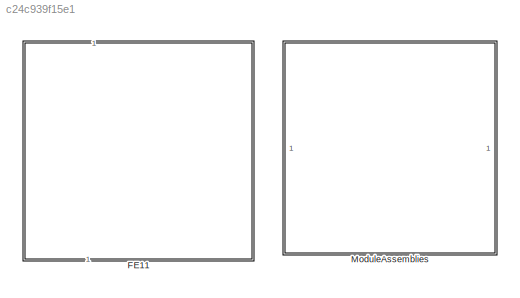
MODEL slx_c24c939f15e1
KIND library
CONFIG AbsTol = auto
CONFIG EnableMultiTasking = off
CONFIG FixedStep = auto
CONFIG MaxStep = auto
CONFIG MinStep = auto
CONFIG RelTol = 1e-3
CONFIG SampleTimeConstraint = Unconstrained
CONFIG SolverName = VariableStepAuto
CONFIG StartTime = 0.0
CONFIG StopTime = 10.0
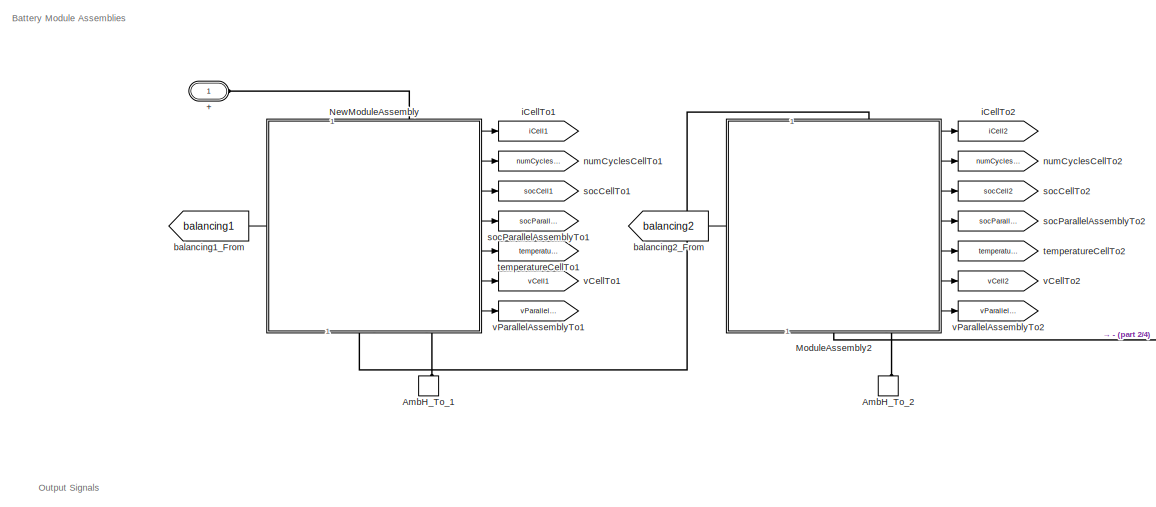
[diagram: FE11 - part 1/4, top left region]
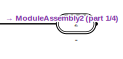
[diagram: FE11 - part 2/4, top right region]
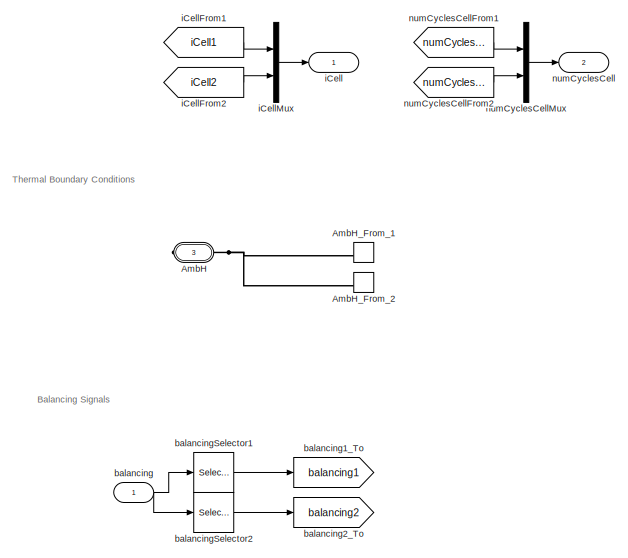
[diagram: FE11 - part 3/4, bottom left region]
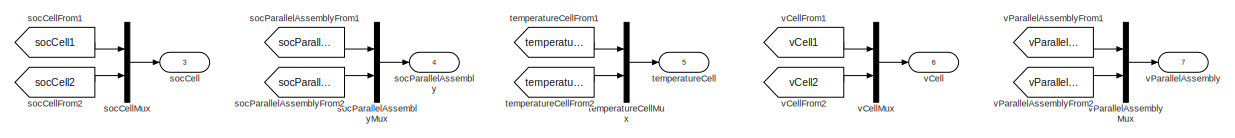
[diagram: FE11 - part 4/4, middle right region]
BLOCK [SubSystem] FE11
  CopyFcn = battery_builder_rtmsupport('copyfcn',gcbh);
  LoadFcn = battery_builder_rtmsupport('loadfcn',gcbh);
  PortSchema = {"entries":[{"content":{"sides":[{"content":{"connectorIds":["LConn1"]},"type":"ConnectorPlacement.EquallySpacedRectSide","uuid":"0c2ee517-dfff-48f0-bd19-3fa4bd353bfe"},{"content":{"connectorIds":["RConn1","RConn2"],"side":"RIGHT"},"type":"ConnectorPlacement.EquallySpacedRectSide","uuid":"159914ce-baf6-4464-9bb9-db860e24401b"},{"content":{"connectorIds":["In1"],"side":"TOP"},"type":"ConnectorPlace...<+451ch>  <repeated x4 — deduplicated; at blocks: FE11, ModuleAssembly2, NewModuleAssembly, ModuleAssemblyType1>
  PreCopyFcn = battery_builder_rtmsupport('precopyfcn',gcbh);
  PreDeleteFcn = battery_builder_rtmsupport('predeletefcn',gcbh);
BLOCK [PMIOPort] FE11/+
  Side = Left
BLOCK [PMIOPort] FE11/-
  Port = 2
  Side = Right
BLOCK [PMIOPort] FE11/AmbH
  ConnectionType = Connection: foundation.thermal.thermal
  Port = 3
  Side = Right
BLOCK [ConnectionLabel] FE11/AmbH_From_1
  Label = ambH_1
BLOCK [ConnectionLabel] FE11/AmbH_From_2
  Label = ambH_2
BLOCK [ConnectionLabel] FE11/AmbH_To_1
  Label = ambH_1
  NameLocation = right
BLOCK [ConnectionLabel] FE11/AmbH_To_2
  Label = ambH_2
  NameLocation = right
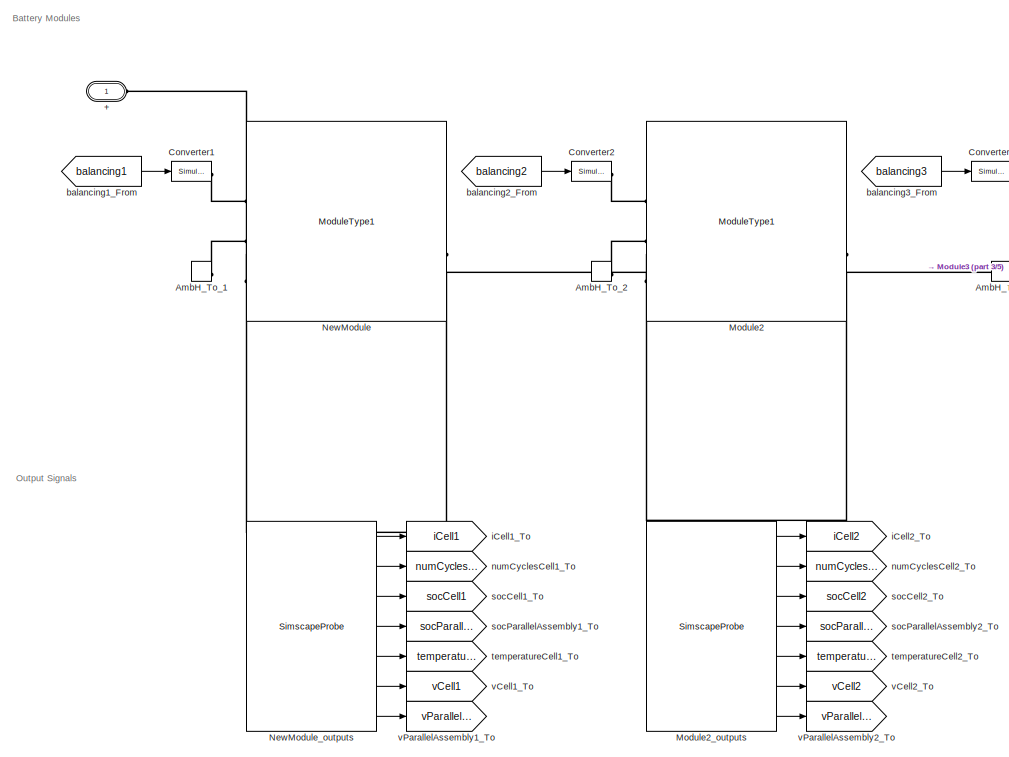
[diagram: FE11/ModuleAssembly2 - part 1/5, top left region]
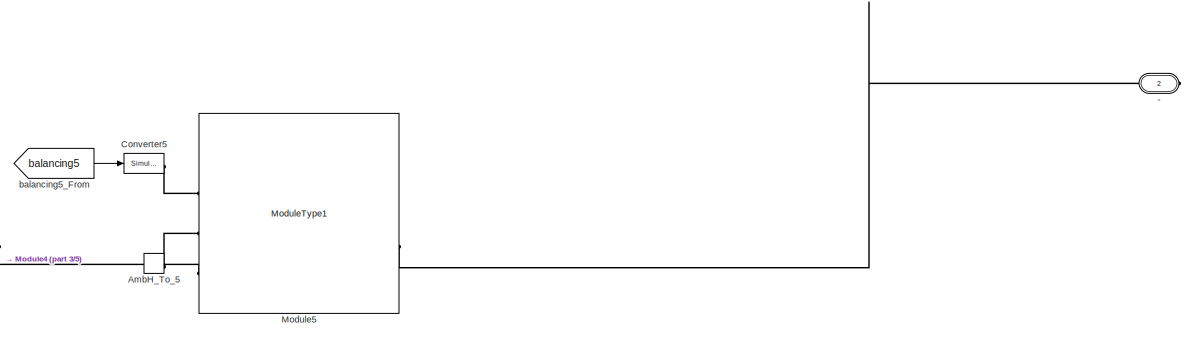
[diagram: FE11/ModuleAssembly2 - part 2/5, top right region]
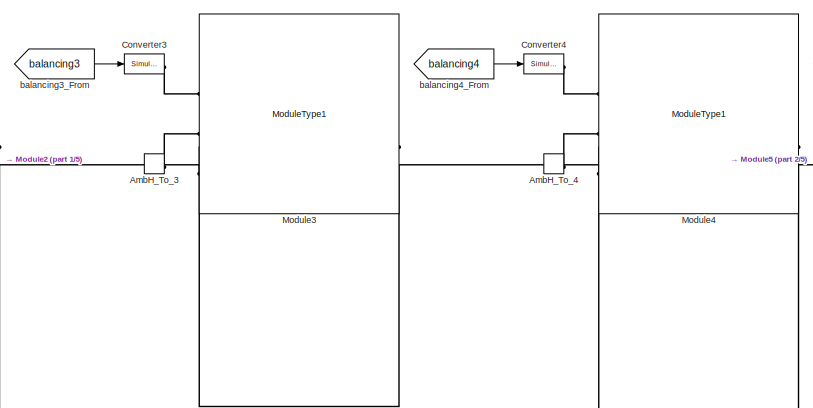
[diagram: FE11/ModuleAssembly2 - part 3/5, top center region]
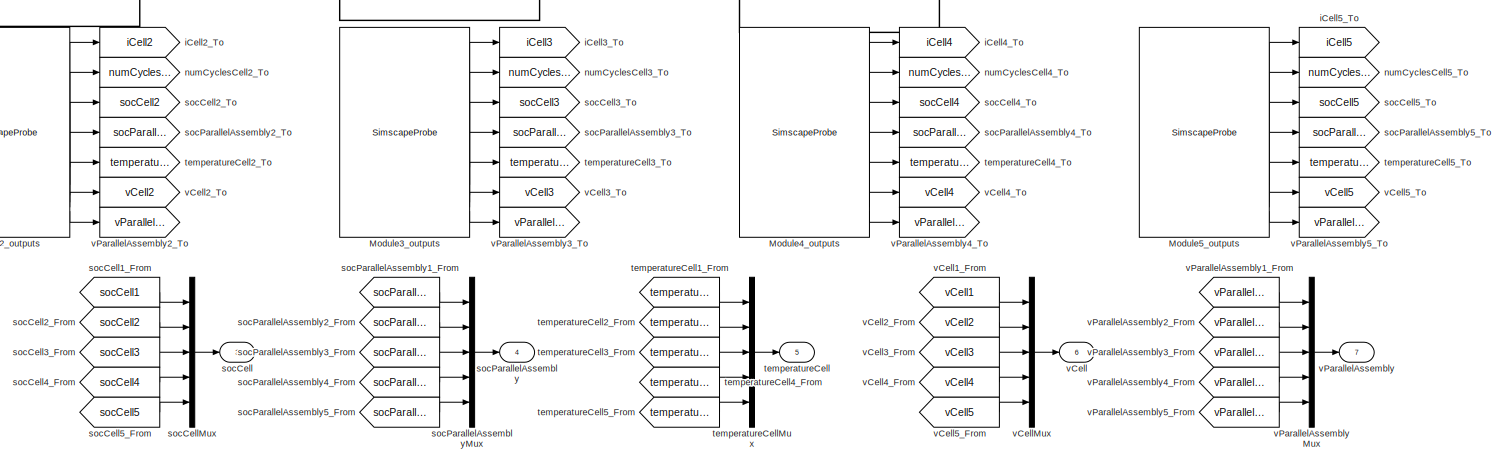
[diagram: FE11/ModuleAssembly2 - part 4/5, central region]
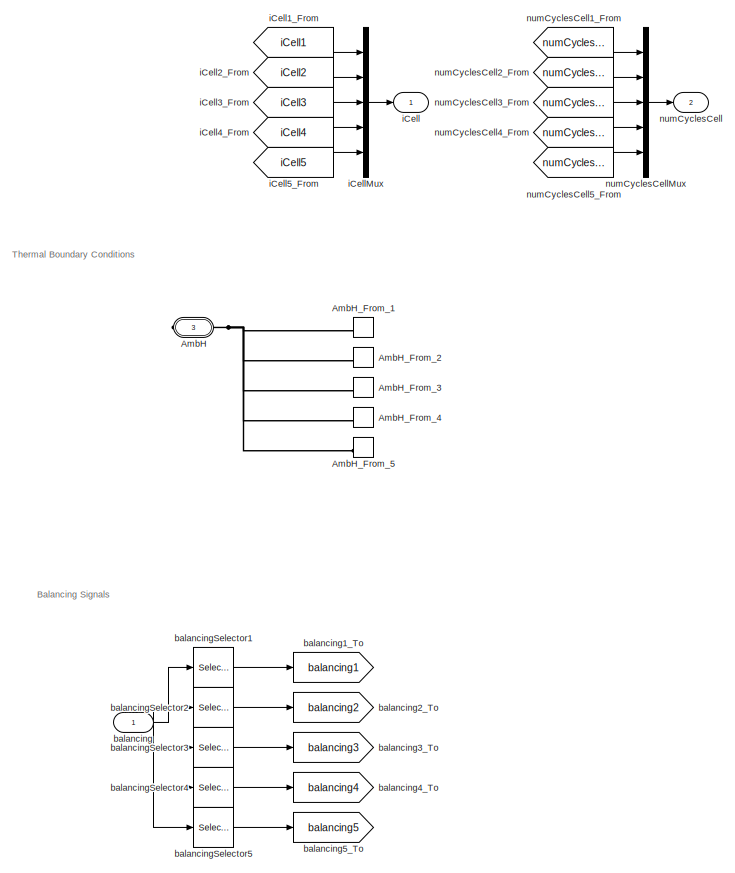
[diagram: FE11/ModuleAssembly2 - part 5/5, bottom left region]
BLOCK [SubSystem] FE11/ModuleAssembly2
  CopyFcn = battery_builder_rtmsupport('copyfcn',gcbh);
  LoadFcn = battery_builder_rtmsupport('loadfcn',gcbh);
  PreCopyFcn = battery_builder_rtmsupport('precopyfcn',gcbh);
  PreDeleteFcn = battery_builder_rtmsupport('predeletefcn',gcbh);
BLOCK [PMIOPort] FE11/ModuleAssembly2/+
  Side = Left
BLOCK [PMIOPort] FE11/ModuleAssembly2/-
  Port = 2
  Side = Right
BLOCK [PMIOPort] FE11/ModuleAssembly2/AmbH
  ConnectionType = Connection: foundation.thermal.thermal
  Port = 3
  Side = Right
BLOCK [ConnectionLabel] FE11/ModuleAssembly2/AmbH_From_1
  Label = ambH_1
BLOCK [ConnectionLabel] FE11/ModuleAssembly2/AmbH_From_2
  Label = ambH_2
BLOCK [ConnectionLabel] FE11/ModuleAssembly2/AmbH_From_3
  Label = ambH_3
BLOCK [ConnectionLabel] FE11/ModuleAssembly2/AmbH_From_4
  Label = ambH_4
BLOCK [ConnectionLabel] FE11/ModuleAssembly2/AmbH_From_5
  Label = ambH_5
BLOCK [ConnectionLabel] FE11/ModuleAssembly2/AmbH_To_1
  Label = ambH_1
BLOCK [ConnectionLabel] FE11/ModuleAssembly2/AmbH_To_2
  Label = ambH_2
BLOCK [ConnectionLabel] FE11/ModuleAssembly2/AmbH_To_3
  Label = ambH_3
BLOCK [ConnectionLabel] FE11/ModuleAssembly2/AmbH_To_4
  Label = ambH_4
BLOCK [ConnectionLabel] FE11/ModuleAssembly2/AmbH_To_5
  Label = ambH_5
BLOCK [Reference] FE11/ModuleAssembly2/Converter1  REF=nesl_utility/Simulink-PS
Converter
  SourceBlock = nesl_utility/Simulink-PS\nConverter
  SourceType = Simulink-PS\nConverter
BLOCK [Reference] FE11/ModuleAssembly2/Converter2  REF=nesl_utility/Simulink-PS
Converter
  SourceBlock = nesl_utility/Simulink-PS\nConverter
  SourceType = Simulink-PS\nConverter
BLOCK [Reference] FE11/ModuleAssembly2/Converter3  REF=nesl_utility/Simulink-PS
Converter
  SourceBlock = nesl_utility/Simulink-PS\nConverter
  SourceType = Simulink-PS\nConverter
BLOCK [Reference] FE11/ModuleAssembly2/Converter4  REF=nesl_utility/Simulink-PS
Converter
  SourceBlock = nesl_utility/Simulink-PS\nConverter
  SourceType = Simulink-PS\nConverter
BLOCK [Reference] FE11/ModuleAssembly2/Converter5  REF=nesl_utility/Simulink-PS
Converter
  SourceBlock = nesl_utility/Simulink-PS\nConverter
  SourceType = Simulink-PS\nConverter
BLOCK [Reference] FE11/ModuleAssembly2/Module2  REF=Batteries_lib/Modules/ModuleType1
  SourceBlock = Batteries_lib/Modules/ModuleType1
  SourceType = ModuleType1
BLOCK [SimscapeProbe] FE11/ModuleAssembly2/Module2_outputs
  BoundBlock = 286
  Variables = {iCell, numCyclesCell, socCell, socParallelAssembly, temperatureCell, vCell, vParallelAssembly}
BLOCK [Reference] FE11/ModuleAssembly2/Module3  REF=Batteries_lib/Modules/ModuleType1
  SourceBlock = Batteries_lib/Modules/ModuleType1
  SourceType = ModuleType1
BLOCK [SimscapeProbe] FE11/ModuleAssembly2/Module3_outputs
  BoundBlock = 288
  Variables = {iCell, numCyclesCell, socCell, socParallelAssembly, temperatureCell, vCell, vParallelAssembly}
BLOCK [Reference] FE11/ModuleAssembly2/Module4  REF=Batteries_lib/Modules/ModuleType1
  SourceBlock = Batteries_lib/Modules/ModuleType1
  SourceType = ModuleType1
BLOCK [SimscapeProbe] FE11/ModuleAssembly2/Module4_outputs
  BoundBlock = 290
  Variables = {iCell, numCyclesCell, socCell, socParallelAssembly, temperatureCell, vCell, vParallelAssembly}
BLOCK [Reference] FE11/ModuleAssembly2/Module5  REF=Batteries_lib/Modules/ModuleType1
  SourceBlock = Batteries_lib/Modules/ModuleType1
  SourceType = ModuleType1
BLOCK [SimscapeProbe] FE11/ModuleAssembly2/Module5_outputs
  BoundBlock = 292
  Variables = {iCell, numCyclesCell, socCell, socParallelAssembly, temperatureCell, vCell, vParallelAssembly}
BLOCK [Reference] FE11/ModuleAssembly2/NewModule  REF=Batteries_lib/Modules/ModuleType1
  SourceBlock = Batteries_lib/Modules/ModuleType1
  SourceType = ModuleType1
BLOCK [SimscapeProbe] FE11/ModuleAssembly2/NewModule_outputs
  BoundBlock = 294
  Variables = {iCell, numCyclesCell, socCell, socParallelAssembly, temperatureCell, vCell, vParallelAssembly}
BLOCK [Inport] FE11/ModuleAssembly2/balancing
  PortDimensions = 60
BLOCK [From] FE11/ModuleAssembly2/balancing1_From
  GotoTag = balancing1
BLOCK [Goto] FE11/ModuleAssembly2/balancing1_To
  GotoTag = balancing1
BLOCK [From] FE11/ModuleAssembly2/balancing2_From
  GotoTag = balancing2
BLOCK [Goto] FE11/ModuleAssembly2/balancing2_To
  GotoTag = balancing2
BLOCK [From] FE11/ModuleAssembly2/balancing3_From
  GotoTag = balancing3
BLOCK [Goto] FE11/ModuleAssembly2/balancing3_To
  GotoTag = balancing3
BLOCK [From] FE11/ModuleAssembly2/balancing4_From
  GotoTag = balancing4
BLOCK [Goto] FE11/ModuleAssembly2/balancing4_To
  GotoTag = balancing4
BLOCK [From] FE11/ModuleAssembly2/balancing5_From
  GotoTag = balancing5
BLOCK [Goto] FE11/ModuleAssembly2/balancing5_To
  GotoTag = balancing5
BLOCK [Selector] FE11/ModuleAssembly2/balancingSelector1
  IndexOptions = Index vector (dialog)
  Indices = [1   2   3   4   5   6   7   8   9  10  11  12]
  InputPortWidth = 60
  OutputSizes = 1
BLOCK [Selector] FE11/ModuleAssembly2/balancingSelector2
  IndexOptions = Index vector (dialog)
  Indices = [13  14  15  16  17  18  19  20  21  22  23  24]
  InputPortWidth = 60
  OutputSizes = 1
BLOCK [Selector] FE11/ModuleAssembly2/balancingSelector3
  IndexOptions = Index vector (dialog)
  Indices = [25  26  27  28  29  30  31  32  33  34  35  36]
  InputPortWidth = 60
  OutputSizes = 1
BLOCK [Selector] FE11/ModuleAssembly2/balancingSelector4
  IndexOptions = Index vector (dialog)
  Indices = [37  38  39  40  41  42  43  44  45  46  47  48]
  InputPortWidth = 60
  OutputSizes = 1
BLOCK [Selector] FE11/ModuleAssembly2/balancingSelector5
  IndexOptions = Index vector (dialog)
  Indices = [49  50  51  52  53  54  55  56  57  58  59  60]
  InputPortWidth = 60
  OutputSizes = 1
BLOCK [Outport] FE11/ModuleAssembly2/iCell
BLOCK [From] FE11/ModuleAssembly2/iCell1_From
  GotoTag = iCell1
BLOCK [Goto] FE11/ModuleAssembly2/iCell1_To
  GotoTag = iCell1
BLOCK [From] FE11/ModuleAssembly2/iCell2_From
  GotoTag = iCell2
BLOCK [Goto] FE11/ModuleAssembly2/iCell2_To
  GotoTag = iCell2
BLOCK [From] FE11/ModuleAssembly2/iCell3_From
  GotoTag = iCell3
BLOCK [Goto] FE11/ModuleAssembly2/iCell3_To
  GotoTag = iCell3
BLOCK [From] FE11/ModuleAssembly2/iCell4_From
  GotoTag = iCell4
BLOCK [Goto] FE11/ModuleAssembly2/iCell4_To
  GotoTag = iCell4
BLOCK [From] FE11/ModuleAssembly2/iCell5_From
  GotoTag = iCell5
BLOCK [Goto] FE11/ModuleAssembly2/iCell5_To
  GotoTag = iCell5
BLOCK [Mux] FE11/ModuleAssembly2/iCellMux
  DisplayOption = bar
  Inputs = 5
BLOCK [Outport] FE11/ModuleAssembly2/numCyclesCell
  Port = 2
BLOCK [From] FE11/ModuleAssembly2/numCyclesCell1_From
  GotoTag = numCyclesCell1
BLOCK [Goto] FE11/ModuleAssembly2/numCyclesCell1_To
  GotoTag = numCyclesCell1
BLOCK [From] FE11/ModuleAssembly2/numCyclesCell2_From
  GotoTag = numCyclesCell2
BLOCK [Goto] FE11/ModuleAssembly2/numCyclesCell2_To
  GotoTag = numCyclesCell2
BLOCK [From] FE11/ModuleAssembly2/numCyclesCell3_From
  GotoTag = numCyclesCell3
BLOCK [Goto] FE11/ModuleAssembly2/numCyclesCell3_To
  GotoTag = numCyclesCell3
BLOCK [From] FE11/ModuleAssembly2/numCyclesCell4_From
  GotoTag = numCyclesCell4
BLOCK [Goto] FE11/ModuleAssembly2/numCyclesCell4_To
  GotoTag = numCyclesCell4
BLOCK [From] FE11/ModuleAssembly2/numCyclesCell5_From
  GotoTag = numCyclesCell5
BLOCK [Goto] FE11/ModuleAssembly2/numCyclesCell5_To
  GotoTag = numCyclesCell5
BLOCK [Mux] FE11/ModuleAssembly2/numCyclesCellMux
  DisplayOption = bar
  Inputs = 5
BLOCK [Outport] FE11/ModuleAssembly2/socCell
  Port = 3
BLOCK [From] FE11/ModuleAssembly2/socCell1_From
  GotoTag = socCell1
BLOCK [Goto] FE11/ModuleAssembly2/socCell1_To
  GotoTag = socCell1
BLOCK [From] FE11/ModuleAssembly2/socCell2_From
  GotoTag = socCell2
BLOCK [Goto] FE11/ModuleAssembly2/socCell2_To
  GotoTag = socCell2
BLOCK [From] FE11/ModuleAssembly2/socCell3_From
  GotoTag = socCell3
BLOCK [Goto] FE11/ModuleAssembly2/socCell3_To
  GotoTag = socCell3
BLOCK [From] FE11/ModuleAssembly2/socCell4_From
  GotoTag = socCell4
BLOCK [Goto] FE11/ModuleAssembly2/socCell4_To
  GotoTag = socCell4
BLOCK [From] FE11/ModuleAssembly2/socCell5_From
  GotoTag = socCell5
BLOCK [Goto] FE11/ModuleAssembly2/socCell5_To
  GotoTag = socCell5
BLOCK [Mux] FE11/ModuleAssembly2/socCellMux
  DisplayOption = bar
  Inputs = 5
BLOCK [Outport] FE11/ModuleAssembly2/socParallelAssembly
  Port = 4
BLOCK [From] FE11/ModuleAssembly2/socParallelAssembly1_From
  GotoTag = socParallelAssembly1
BLOCK [Goto] FE11/ModuleAssembly2/socParallelAssembly1_To
  GotoTag = socParallelAssembly1
BLOCK [From] FE11/ModuleAssembly2/socParallelAssembly2_From
  GotoTag = socParallelAssembly2
BLOCK [Goto] FE11/ModuleAssembly2/socParallelAssembly2_To
  GotoTag = socParallelAssembly2
BLOCK [From] FE11/ModuleAssembly2/socParallelAssembly3_From
  GotoTag = socParallelAssembly3
BLOCK [Goto] FE11/ModuleAssembly2/socParallelAssembly3_To
  GotoTag = socParallelAssembly3
BLOCK [From] FE11/ModuleAssembly2/socParallelAssembly4_From
  GotoTag = socParallelAssembly4
BLOCK [Goto] FE11/ModuleAssembly2/socParallelAssembly4_To
  GotoTag = socParallelAssembly4
BLOCK [From] FE11/ModuleAssembly2/socParallelAssembly5_From
  GotoTag = socParallelAssembly5
BLOCK [Goto] FE11/ModuleAssembly2/socParallelAssembly5_To
  GotoTag = socParallelAssembly5
BLOCK [Mux] FE11/ModuleAssembly2/socParallelAssemblyMux
  DisplayOption = bar
  Inputs = 5
BLOCK [Outport] FE11/ModuleAssembly2/temperatureCell
  Port = 5
BLOCK [From] FE11/ModuleAssembly2/temperatureCell1_From
  GotoTag = temperatureCell1
BLOCK [Goto] FE11/ModuleAssembly2/temperatureCell1_To
  GotoTag = temperatureCell1
BLOCK [From] FE11/ModuleAssembly2/temperatureCell2_From
  GotoTag = temperatureCell2
BLOCK [Goto] FE11/ModuleAssembly2/temperatureCell2_To
  GotoTag = temperatureCell2
BLOCK [From] FE11/ModuleAssembly2/temperatureCell3_From
  GotoTag = temperatureCell3
BLOCK [Goto] FE11/ModuleAssembly2/temperatureCell3_To
  GotoTag = temperatureCell3
BLOCK [From] FE11/ModuleAssembly2/temperatureCell4_From
  GotoTag = temperatureCell4
BLOCK [Goto] FE11/ModuleAssembly2/temperatureCell4_To
  GotoTag = temperatureCell4
BLOCK [From] FE11/ModuleAssembly2/temperatureCell5_From
  GotoTag = temperatureCell5
BLOCK [Goto] FE11/ModuleAssembly2/temperatureCell5_To
  GotoTag = temperatureCell5
BLOCK [Mux] FE11/ModuleAssembly2/temperatureCellMux
  DisplayOption = bar
  Inputs = 5
BLOCK [Outport] FE11/ModuleAssembly2/vCell
  Port = 6
BLOCK [From] FE11/ModuleAssembly2/vCell1_From
  GotoTag = vCell1
BLOCK [Goto] FE11/ModuleAssembly2/vCell1_To
  GotoTag = vCell1
BLOCK [From] FE11/ModuleAssembly2/vCell2_From
  GotoTag = vCell2
BLOCK [Goto] FE11/ModuleAssembly2/vCell2_To
  GotoTag = vCell2
BLOCK [From] FE11/ModuleAssembly2/vCell3_From
  GotoTag = vCell3
BLOCK [Goto] FE11/ModuleAssembly2/vCell3_To
  GotoTag = vCell3
BLOCK [From] FE11/ModuleAssembly2/vCell4_From
  GotoTag = vCell4
BLOCK [Goto] FE11/ModuleAssembly2/vCell4_To
  GotoTag = vCell4
BLOCK [From] FE11/ModuleAssembly2/vCell5_From
  GotoTag = vCell5
BLOCK [Goto] FE11/ModuleAssembly2/vCell5_To
  GotoTag = vCell5
BLOCK [Mux] FE11/ModuleAssembly2/vCellMux
  DisplayOption = bar
  Inputs = 5
BLOCK [Outport] FE11/ModuleAssembly2/vParallelAssembly
  Port = 7
BLOCK [From] FE11/ModuleAssembly2/vParallelAssembly1_From
  GotoTag = vParallelAssembly1
BLOCK [Goto] FE11/ModuleAssembly2/vParallelAssembly1_To
  GotoTag = vParallelAssembly1
BLOCK [From] FE11/ModuleAssembly2/vParallelAssembly2_From
  GotoTag = vParallelAssembly2
BLOCK [Goto] FE11/ModuleAssembly2/vParallelAssembly2_To
  GotoTag = vParallelAssembly2
BLOCK [From] FE11/ModuleAssembly2/vParallelAssembly3_From
  GotoTag = vParallelAssembly3
BLOCK [Goto] FE11/ModuleAssembly2/vParallelAssembly3_To
  GotoTag = vParallelAssembly3
BLOCK [From] FE11/ModuleAssembly2/vParallelAssembly4_From
  GotoTag = vParallelAssembly4
BLOCK [Goto] FE11/ModuleAssembly2/vParallelAssembly4_To
  GotoTag = vParallelAssembly4
BLOCK [From] FE11/ModuleAssembly2/vParallelAssembly5_From
  GotoTag = vParallelAssembly5
BLOCK [Goto] FE11/ModuleAssembly2/vParallelAssembly5_To
  GotoTag = vParallelAssembly5
BLOCK [Mux] FE11/ModuleAssembly2/vParallelAssemblyMux
  DisplayOption = bar
  Inputs = 5
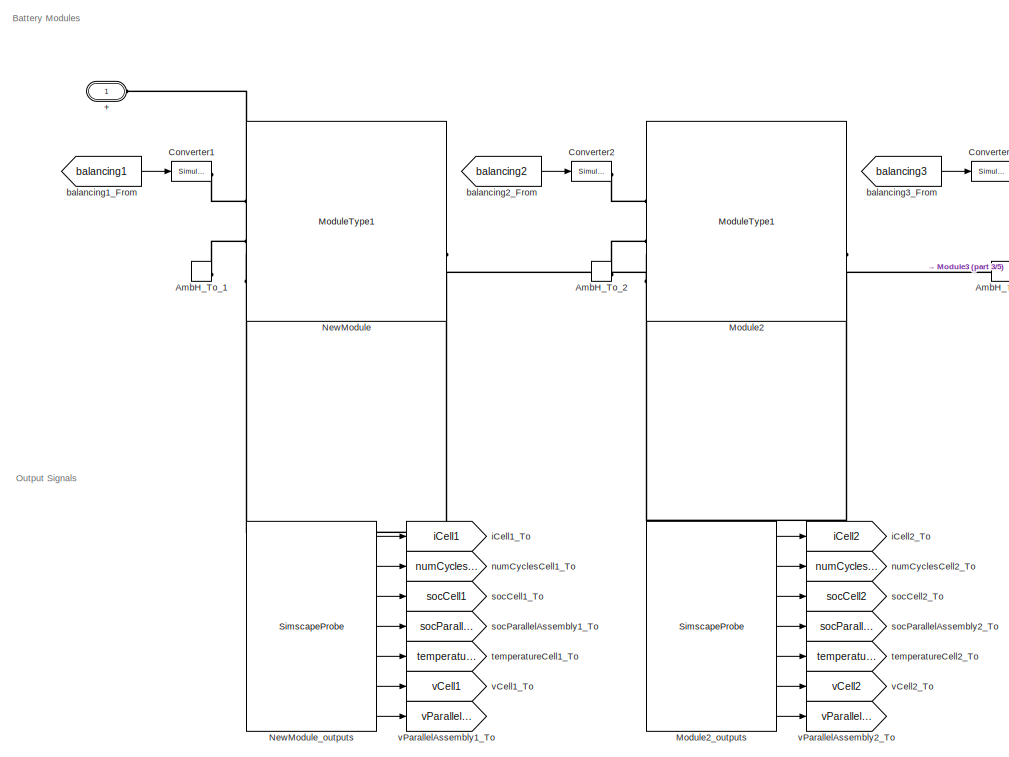
[diagram: FE11/NewModuleAssembly - part 1/5, top left region]
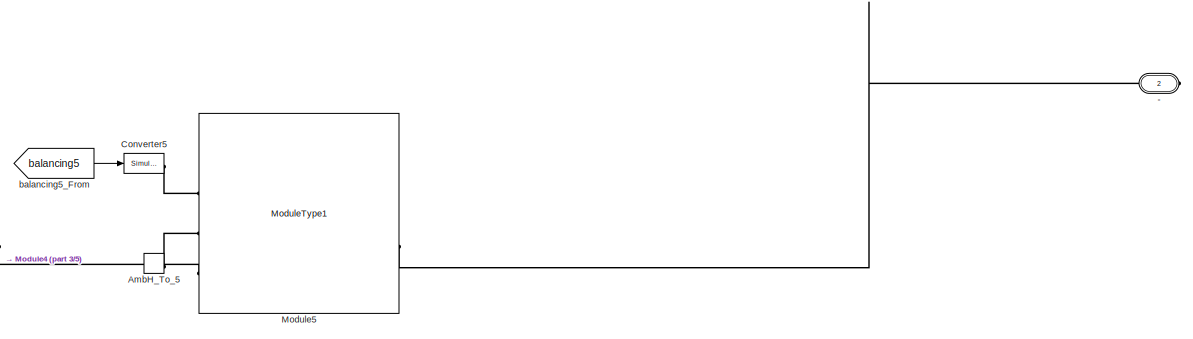
[diagram: FE11/NewModuleAssembly - part 2/5, top right region]
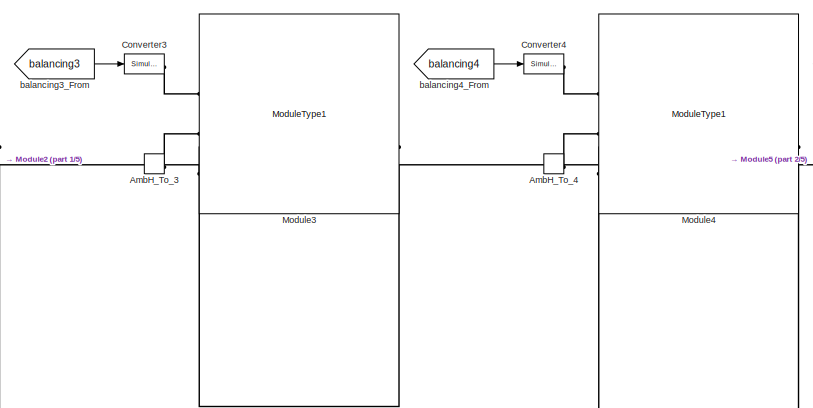
[diagram: FE11/NewModuleAssembly - part 3/5, top center region]
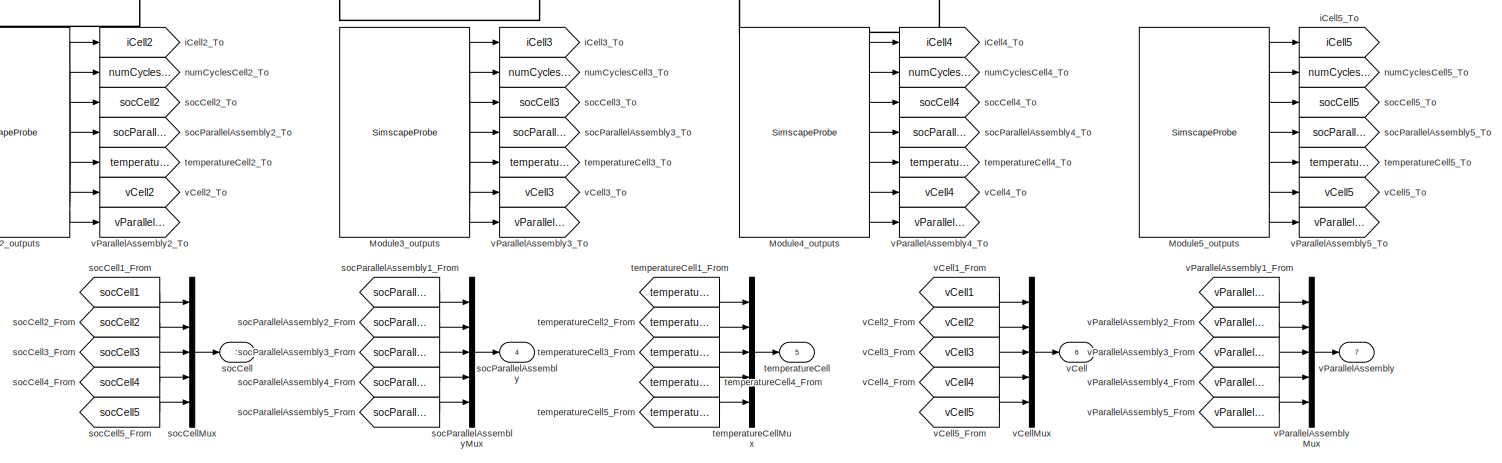
[diagram: FE11/NewModuleAssembly - part 4/5, central region]
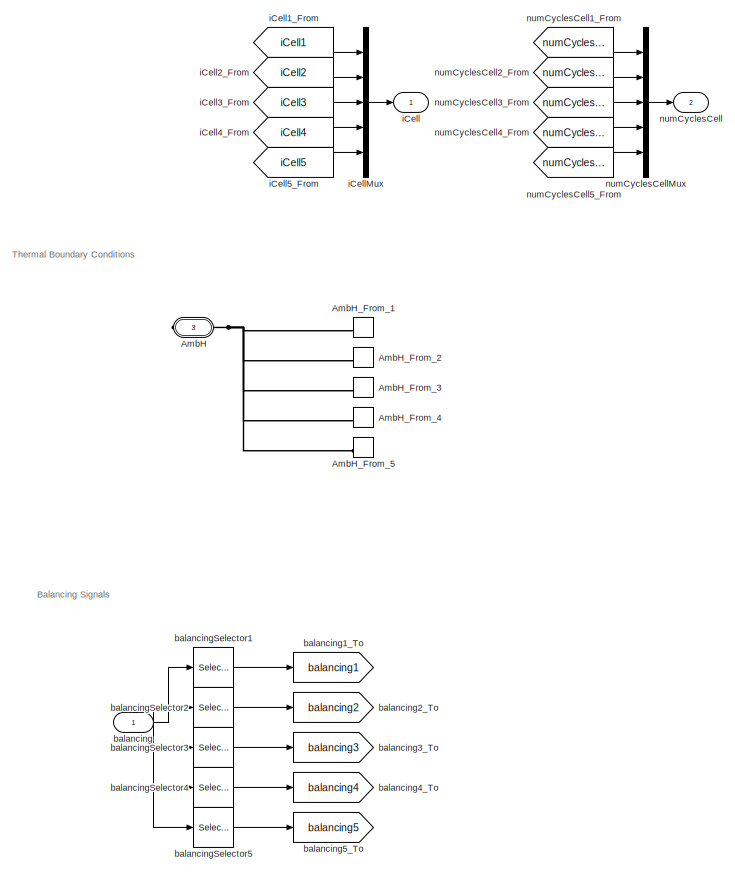
[diagram: FE11/NewModuleAssembly - part 5/5, bottom left region]
BLOCK [SubSystem] FE11/NewModuleAssembly
  CopyFcn = battery_builder_rtmsupport('copyfcn',gcbh);
  LoadFcn = battery_builder_rtmsupport('loadfcn',gcbh);
  PreCopyFcn = battery_builder_rtmsupport('precopyfcn',gcbh);
  PreDeleteFcn = battery_builder_rtmsupport('predeletefcn',gcbh);
BLOCK [PMIOPort] FE11/NewModuleAssembly/+
  Side = Left
BLOCK [PMIOPort] FE11/NewModuleAssembly/-
  Port = 2
  Side = Right
BLOCK [PMIOPort] FE11/NewModuleAssembly/AmbH
  ConnectionType = Connection: foundation.thermal.thermal
  Port = 3
  Side = Right
BLOCK [ConnectionLabel] FE11/NewModuleAssembly/AmbH_From_1
  Label = ambH_1
BLOCK [ConnectionLabel] FE11/NewModuleAssembly/AmbH_From_2
  Label = ambH_2
BLOCK [ConnectionLabel] FE11/NewModuleAssembly/AmbH_From_3
  Label = ambH_3
BLOCK [ConnectionLabel] FE11/NewModuleAssembly/AmbH_From_4
  Label = ambH_4
BLOCK [ConnectionLabel] FE11/NewModuleAssembly/AmbH_From_5
  Label = ambH_5
BLOCK [ConnectionLabel] FE11/NewModuleAssembly/AmbH_To_1
  Label = ambH_1
BLOCK [ConnectionLabel] FE11/NewModuleAssembly/AmbH_To_2
  Label = ambH_2
BLOCK [ConnectionLabel] FE11/NewModuleAssembly/AmbH_To_3
  Label = ambH_3
BLOCK [ConnectionLabel] FE11/NewModuleAssembly/AmbH_To_4
  Label = ambH_4
BLOCK [ConnectionLabel] FE11/NewModuleAssembly/AmbH_To_5
  Label = ambH_5
BLOCK [Reference] FE11/NewModuleAssembly/Converter1  REF=nesl_utility/Simulink-PS
Converter
  SourceBlock = nesl_utility/Simulink-PS\nConverter
  SourceType = Simulink-PS\nConverter
BLOCK [Reference] FE11/NewModuleAssembly/Converter2  REF=nesl_utility/Simulink-PS
Converter
  SourceBlock = nesl_utility/Simulink-PS\nConverter
  SourceType = Simulink-PS\nConverter
BLOCK [Reference] FE11/NewModuleAssembly/Converter3  REF=nesl_utility/Simulink-PS
Converter
  SourceBlock = nesl_utility/Simulink-PS\nConverter
  SourceType = Simulink-PS\nConverter
BLOCK [Reference] FE11/NewModuleAssembly/Converter4  REF=nesl_utility/Simulink-PS
Converter
  SourceBlock = nesl_utility/Simulink-PS\nConverter
  SourceType = Simulink-PS\nConverter
BLOCK [Reference] FE11/NewModuleAssembly/Converter5  REF=nesl_utility/Simulink-PS
Converter
  SourceBlock = nesl_utility/Simulink-PS\nConverter
  SourceType = Simulink-PS\nConverter
BLOCK [Reference] FE11/NewModuleAssembly/Module2  REF=Batteries_lib/Modules/ModuleType1
  SourceBlock = Batteries_lib/Modules/ModuleType1
  SourceType = ModuleType1
BLOCK [SimscapeProbe] FE11/NewModuleAssembly/Module2_outputs
  BoundBlock = 153
  Variables = {iCell, numCyclesCell, socCell, socParallelAssembly, temperatureCell, vCell, vParallelAssembly}
BLOCK [Reference] FE11/NewModuleAssembly/Module3  REF=Batteries_lib/Modules/ModuleType1
  SourceBlock = Batteries_lib/Modules/ModuleType1
  SourceType = ModuleType1
BLOCK [SimscapeProbe] FE11/NewModuleAssembly/Module3_outputs
  BoundBlock = 155
  Variables = {iCell, numCyclesCell, socCell, socParallelAssembly, temperatureCell, vCell, vParallelAssembly}
BLOCK [Reference] FE11/NewModuleAssembly/Module4  REF=Batteries_lib/Modules/ModuleType1
  SourceBlock = Batteries_lib/Modules/ModuleType1
  SourceType = ModuleType1
BLOCK [SimscapeProbe] FE11/NewModuleAssembly/Module4_outputs
  BoundBlock = 157
  Variables = {iCell, numCyclesCell, socCell, socParallelAssembly, temperatureCell, vCell, vParallelAssembly}
BLOCK [Reference] FE11/NewModuleAssembly/Module5  REF=Batteries_lib/Modules/ModuleType1
  SourceBlock = Batteries_lib/Modules/ModuleType1
  SourceType = ModuleType1
BLOCK [SimscapeProbe] FE11/NewModuleAssembly/Module5_outputs
  BoundBlock = 159
  Variables = {iCell, numCyclesCell, socCell, socParallelAssembly, temperatureCell, vCell, vParallelAssembly}
BLOCK [Reference] FE11/NewModuleAssembly/NewModule  REF=Batteries_lib/Modules/ModuleType1
  SourceBlock = Batteries_lib/Modules/ModuleType1
  SourceType = ModuleType1
BLOCK [SimscapeProbe] FE11/NewModuleAssembly/NewModule_outputs
  BoundBlock = 161
  Variables = {iCell, numCyclesCell, socCell, socParallelAssembly, temperatureCell, vCell, vParallelAssembly}
BLOCK [Inport] FE11/NewModuleAssembly/balancing
  PortDimensions = 60
BLOCK [From] FE11/NewModuleAssembly/balancing1_From
  GotoTag = balancing1
BLOCK [Goto] FE11/NewModuleAssembly/balancing1_To
  GotoTag = balancing1
BLOCK [From] FE11/NewModuleAssembly/balancing2_From
  GotoTag = balancing2
BLOCK [Goto] FE11/NewModuleAssembly/balancing2_To
  GotoTag = balancing2
BLOCK [From] FE11/NewModuleAssembly/balancing3_From
  GotoTag = balancing3
BLOCK [Goto] FE11/NewModuleAssembly/balancing3_To
  GotoTag = balancing3
BLOCK [From] FE11/NewModuleAssembly/balancing4_From
  GotoTag = balancing4
BLOCK [Goto] FE11/NewModuleAssembly/balancing4_To
  GotoTag = balancing4
BLOCK [From] FE11/NewModuleAssembly/balancing5_From
  GotoTag = balancing5
BLOCK [Goto] FE11/NewModuleAssembly/balancing5_To
  GotoTag = balancing5
BLOCK [Selector] FE11/NewModuleAssembly/balancingSelector1
  IndexOptions = Index vector (dialog)
  Indices = [1   2   3   4   5   6   7   8   9  10  11  12]
  InputPortWidth = 60
  OutputSizes = 1
BLOCK [Selector] FE11/NewModuleAssembly/balancingSelector2
  IndexOptions = Index vector (dialog)
  Indices = [13  14  15  16  17  18  19  20  21  22  23  24]
  InputPortWidth = 60
  OutputSizes = 1
BLOCK [Selector] FE11/NewModuleAssembly/balancingSelector3
  IndexOptions = Index vector (dialog)
  Indices = [25  26  27  28  29  30  31  32  33  34  35  36]
  InputPortWidth = 60
  OutputSizes = 1
BLOCK [Selector] FE11/NewModuleAssembly/balancingSelector4
  IndexOptions = Index vector (dialog)
  Indices = [37  38  39  40  41  42  43  44  45  46  47  48]
  InputPortWidth = 60
  OutputSizes = 1
BLOCK [Selector] FE11/NewModuleAssembly/balancingSelector5
  IndexOptions = Index vector (dialog)
  Indices = [49  50  51  52  53  54  55  56  57  58  59  60]
  InputPortWidth = 60
  OutputSizes = 1
BLOCK [Outport] FE11/NewModuleAssembly/iCell
BLOCK [From] FE11/NewModuleAssembly/iCell1_From
  GotoTag = iCell1
BLOCK [Goto] FE11/NewModuleAssembly/iCell1_To
  GotoTag = iCell1
BLOCK [From] FE11/NewModuleAssembly/iCell2_From
  GotoTag = iCell2
BLOCK [Goto] FE11/NewModuleAssembly/iCell2_To
  GotoTag = iCell2
BLOCK [From] FE11/NewModuleAssembly/iCell3_From
  GotoTag = iCell3
BLOCK [Goto] FE11/NewModuleAssembly/iCell3_To
  GotoTag = iCell3
BLOCK [From] FE11/NewModuleAssembly/iCell4_From
  GotoTag = iCell4
BLOCK [Goto] FE11/NewModuleAssembly/iCell4_To
  GotoTag = iCell4
BLOCK [From] FE11/NewModuleAssembly/iCell5_From
  GotoTag = iCell5
BLOCK [Goto] FE11/NewModuleAssembly/iCell5_To
  GotoTag = iCell5
BLOCK [Mux] FE11/NewModuleAssembly/iCellMux
  DisplayOption = bar
  Inputs = 5
BLOCK [Outport] FE11/NewModuleAssembly/numCyclesCell
  Port = 2
BLOCK [From] FE11/NewModuleAssembly/numCyclesCell1_From
  GotoTag = numCyclesCell1
BLOCK [Goto] FE11/NewModuleAssembly/numCyclesCell1_To
  GotoTag = numCyclesCell1
BLOCK [From] FE11/NewModuleAssembly/numCyclesCell2_From
  GotoTag = numCyclesCell2
BLOCK [Goto] FE11/NewModuleAssembly/numCyclesCell2_To
  GotoTag = numCyclesCell2
BLOCK [From] FE11/NewModuleAssembly/numCyclesCell3_From
  GotoTag = numCyclesCell3
BLOCK [Goto] FE11/NewModuleAssembly/numCyclesCell3_To
  GotoTag = numCyclesCell3
BLOCK [From] FE11/NewModuleAssembly/numCyclesCell4_From
  GotoTag = numCyclesCell4
BLOCK [Goto] FE11/NewModuleAssembly/numCyclesCell4_To
  GotoTag = numCyclesCell4
BLOCK [From] FE11/NewModuleAssembly/numCyclesCell5_From
  GotoTag = numCyclesCell5
BLOCK [Goto] FE11/NewModuleAssembly/numCyclesCell5_To
  GotoTag = numCyclesCell5
BLOCK [Mux] FE11/NewModuleAssembly/numCyclesCellMux
  DisplayOption = bar
  Inputs = 5
BLOCK [Outport] FE11/NewModuleAssembly/socCell
  Port = 3
BLOCK [From] FE11/NewModuleAssembly/socCell1_From
  GotoTag = socCell1
BLOCK [Goto] FE11/NewModuleAssembly/socCell1_To
  GotoTag = socCell1
BLOCK [From] FE11/NewModuleAssembly/socCell2_From
  GotoTag = socCell2
BLOCK [Goto] FE11/NewModuleAssembly/socCell2_To
  GotoTag = socCell2
BLOCK [From] FE11/NewModuleAssembly/socCell3_From
  GotoTag = socCell3
BLOCK [Goto] FE11/NewModuleAssembly/socCell3_To
  GotoTag = socCell3
BLOCK [From] FE11/NewModuleAssembly/socCell4_From
  GotoTag = socCell4
BLOCK [Goto] FE11/NewModuleAssembly/socCell4_To
  GotoTag = socCell4
BLOCK [From] FE11/NewModuleAssembly/socCell5_From
  GotoTag = socCell5
BLOCK [Goto] FE11/NewModuleAssembly/socCell5_To
  GotoTag = socCell5
BLOCK [Mux] FE11/NewModuleAssembly/socCellMux
  DisplayOption = bar
  Inputs = 5
BLOCK [Outport] FE11/NewModuleAssembly/socParallelAssembly
  Port = 4
BLOCK [From] FE11/NewModuleAssembly/socParallelAssembly1_From
  GotoTag = socParallelAssembly1
BLOCK [Goto] FE11/NewModuleAssembly/socParallelAssembly1_To
  GotoTag = socParallelAssembly1
BLOCK [From] FE11/NewModuleAssembly/socParallelAssembly2_From
  GotoTag = socParallelAssembly2
BLOCK [Goto] FE11/NewModuleAssembly/socParallelAssembly2_To
  GotoTag = socParallelAssembly2
BLOCK [From] FE11/NewModuleAssembly/socParallelAssembly3_From
  GotoTag = socParallelAssembly3
BLOCK [Goto] FE11/NewModuleAssembly/socParallelAssembly3_To
  GotoTag = socParallelAssembly3
BLOCK [From] FE11/NewModuleAssembly/socParallelAssembly4_From
  GotoTag = socParallelAssembly4
BLOCK [Goto] FE11/NewModuleAssembly/socParallelAssembly4_To
  GotoTag = socParallelAssembly4
BLOCK [From] FE11/NewModuleAssembly/socParallelAssembly5_From
  GotoTag = socParallelAssembly5
BLOCK [Goto] FE11/NewModuleAssembly/socParallelAssembly5_To
  GotoTag = socParallelAssembly5
BLOCK [Mux] FE11/NewModuleAssembly/socParallelAssemblyMux
  DisplayOption = bar
  Inputs = 5
BLOCK [Outport] FE11/NewModuleAssembly/temperatureCell
  Port = 5
BLOCK [From] FE11/NewModuleAssembly/temperatureCell1_From
  GotoTag = temperatureCell1
BLOCK [Goto] FE11/NewModuleAssembly/temperatureCell1_To
  GotoTag = temperatureCell1
BLOCK [From] FE11/NewModuleAssembly/temperatureCell2_From
  GotoTag = temperatureCell2
BLOCK [Goto] FE11/NewModuleAssembly/temperatureCell2_To
  GotoTag = temperatureCell2
BLOCK [From] FE11/NewModuleAssembly/temperatureCell3_From
  GotoTag = temperatureCell3
BLOCK [Goto] FE11/NewModuleAssembly/temperatureCell3_To
  GotoTag = temperatureCell3
BLOCK [From] FE11/NewModuleAssembly/temperatureCell4_From
  GotoTag = temperatureCell4
BLOCK [Goto] FE11/NewModuleAssembly/temperatureCell4_To
  GotoTag = temperatureCell4
BLOCK [From] FE11/NewModuleAssembly/temperatureCell5_From
  GotoTag = temperatureCell5
BLOCK [Goto] FE11/NewModuleAssembly/temperatureCell5_To
  GotoTag = temperatureCell5
BLOCK [Mux] FE11/NewModuleAssembly/temperatureCellMux
  DisplayOption = bar
  Inputs = 5
BLOCK [Outport] FE11/NewModuleAssembly/vCell
  Port = 6
BLOCK [From] FE11/NewModuleAssembly/vCell1_From
  GotoTag = vCell1
BLOCK [Goto] FE11/NewModuleAssembly/vCell1_To
  GotoTag = vCell1
BLOCK [From] FE11/NewModuleAssembly/vCell2_From
  GotoTag = vCell2
BLOCK [Goto] FE11/NewModuleAssembly/vCell2_To
  GotoTag = vCell2
BLOCK [From] FE11/NewModuleAssembly/vCell3_From
  GotoTag = vCell3
BLOCK [Goto] FE11/NewModuleAssembly/vCell3_To
  GotoTag = vCell3
BLOCK [From] FE11/NewModuleAssembly/vCell4_From
  GotoTag = vCell4
BLOCK [Goto] FE11/NewModuleAssembly/vCell4_To
  GotoTag = vCell4
BLOCK [From] FE11/NewModuleAssembly/vCell5_From
  GotoTag = vCell5
BLOCK [Goto] FE11/NewModuleAssembly/vCell5_To
  GotoTag = vCell5
BLOCK [Mux] FE11/NewModuleAssembly/vCellMux
  DisplayOption = bar
  Inputs = 5
BLOCK [Outport] FE11/NewModuleAssembly/vParallelAssembly
  Port = 7
BLOCK [From] FE11/NewModuleAssembly/vParallelAssembly1_From
  GotoTag = vParallelAssembly1
BLOCK [Goto] FE11/NewModuleAssembly/vParallelAssembly1_To
  GotoTag = vParallelAssembly1
BLOCK [From] FE11/NewModuleAssembly/vParallelAssembly2_From
  GotoTag = vParallelAssembly2
BLOCK [Goto] FE11/NewModuleAssembly/vParallelAssembly2_To
  GotoTag = vParallelAssembly2
BLOCK [From] FE11/NewModuleAssembly/vParallelAssembly3_From
  GotoTag = vParallelAssembly3
BLOCK [Goto] FE11/NewModuleAssembly/vParallelAssembly3_To
  GotoTag = vParallelAssembly3
BLOCK [From] FE11/NewModuleAssembly/vParallelAssembly4_From
  GotoTag = vParallelAssembly4
BLOCK [Goto] FE11/NewModuleAssembly/vParallelAssembly4_To
  GotoTag = vParallelAssembly4
BLOCK [From] FE11/NewModuleAssembly/vParallelAssembly5_From
  GotoTag = vParallelAssembly5
BLOCK [Goto] FE11/NewModuleAssembly/vParallelAssembly5_To
  GotoTag = vParallelAssembly5
BLOCK [Mux] FE11/NewModuleAssembly/vParallelAssemblyMux
  DisplayOption = bar
  Inputs = 5
BLOCK [Inport] FE11/balancing
  PortDimensions = 120
BLOCK [From] FE11/balancing1_From
  GotoTag = balancing1
BLOCK [Goto] FE11/balancing1_To
  GotoTag = balancing1
BLOCK [From] FE11/balancing2_From
  GotoTag = balancing2
BLOCK [Goto] FE11/balancing2_To
  GotoTag = balancing2
BLOCK [Selector] FE11/balancingSelector1
  IndexOptions = Index vector (dialog)
  Indices = [1   2   3   4   5   6   7   8   9  10  11  12  13  14  15  16  17  18  19  20  21  22  23  24  25  26  27  28  29  30  31  32  33  34  35  36  37  38  39  40  41  42  43  44  45  46  47  48  49  50  51  52  53  54  55  56  57  58  59  60]
  InputPortWidth = 120
  OutputSizes = 1
BLOCK [Selector] FE11/balancingSelector2
  IndexOptions = Index vector (dialog)
  Indices = [61   62   63   64   65   66   67   68   69   70   71   72   73   74   75   76   77   78   79   80   81   82   83   84   85   86   87   88   89   90   91   92   93   94   95   96   97   98   99  100  101  102  103  104  105  106  107  108  109  110  111  112  113  114  115  116  117  118  119  120]
  InputPortWidth = 120
  OutputSizes = 1
BLOCK [Outport] FE11/iCell
BLOCK [From] FE11/iCellFrom1
  GotoTag = iCell1
BLOCK [From] FE11/iCellFrom2
  GotoTag = iCell2
BLOCK [Mux] FE11/iCellMux
  DisplayOption = bar
  Inputs = 2
BLOCK [Goto] FE11/iCellTo1
  GotoTag = iCell1
BLOCK [Goto] FE11/iCellTo2
  GotoTag = iCell2
BLOCK [Outport] FE11/numCyclesCell
  Port = 2
BLOCK [From] FE11/numCyclesCellFrom1
  GotoTag = numCyclesCell1
BLOCK [From] FE11/numCyclesCellFrom2
  GotoTag = numCyclesCell2
BLOCK [Mux] FE11/numCyclesCellMux
  DisplayOption = bar
  Inputs = 2
BLOCK [Goto] FE11/numCyclesCellTo1
  GotoTag = numCyclesCell1
BLOCK [Goto] FE11/numCyclesCellTo2
  GotoTag = numCyclesCell2
BLOCK [Outport] FE11/socCell
  Port = 3
BLOCK [From] FE11/socCellFrom1
  GotoTag = socCell1
BLOCK [From] FE11/socCellFrom2
  GotoTag = socCell2
BLOCK [Mux] FE11/socCellMux
  DisplayOption = bar
  Inputs = 2
BLOCK [Goto] FE11/socCellTo1
  GotoTag = socCell1
BLOCK [Goto] FE11/socCellTo2
  GotoTag = socCell2
BLOCK [Outport] FE11/socParallelAssembly
  Port = 4
BLOCK [From] FE11/socParallelAssemblyFrom1
  GotoTag = socParallelAssembly1
BLOCK [From] FE11/socParallelAssemblyFrom2
  GotoTag = socParallelAssembly2
BLOCK [Mux] FE11/socParallelAssemblyMux
  DisplayOption = bar
  Inputs = 2
BLOCK [Goto] FE11/socParallelAssemblyTo1
  GotoTag = socParallelAssembly1
BLOCK [Goto] FE11/socParallelAssemblyTo2
  GotoTag = socParallelAssembly2
BLOCK [Outport] FE11/temperatureCell
  Port = 5
BLOCK [From] FE11/temperatureCellFrom1
  GotoTag = temperatureCell1
BLOCK [From] FE11/temperatureCellFrom2
  GotoTag = temperatureCell2
BLOCK [Mux] FE11/temperatureCellMux
  DisplayOption = bar
  Inputs = 2
BLOCK [Goto] FE11/temperatureCellTo1
  GotoTag = temperatureCell1
BLOCK [Goto] FE11/temperatureCellTo2
  GotoTag = temperatureCell2
BLOCK [Outport] FE11/vCell
  Port = 6
BLOCK [From] FE11/vCellFrom1
  GotoTag = vCell1
BLOCK [From] FE11/vCellFrom2
  GotoTag = vCell2
BLOCK [Mux] FE11/vCellMux
  DisplayOption = bar
  Inputs = 2
BLOCK [Goto] FE11/vCellTo1
  GotoTag = vCell1
BLOCK [Goto] FE11/vCellTo2
  GotoTag = vCell2
BLOCK [Outport] FE11/vParallelAssembly
  Port = 7
BLOCK [From] FE11/vParallelAssemblyFrom1
  GotoTag = vParallelAssembly1
BLOCK [From] FE11/vParallelAssemblyFrom2
  GotoTag = vParallelAssembly2
BLOCK [Mux] FE11/vParallelAssemblyMux
  DisplayOption = bar
  Inputs = 2
BLOCK [Goto] FE11/vParallelAssemblyTo1
  GotoTag = vParallelAssembly1
BLOCK [Goto] FE11/vParallelAssemblyTo2
  GotoTag = vParallelAssembly2
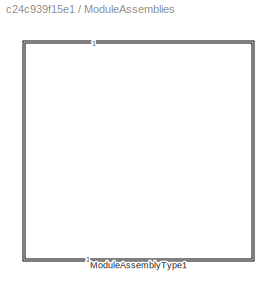
BLOCK [SubSystem] ModuleAssemblies
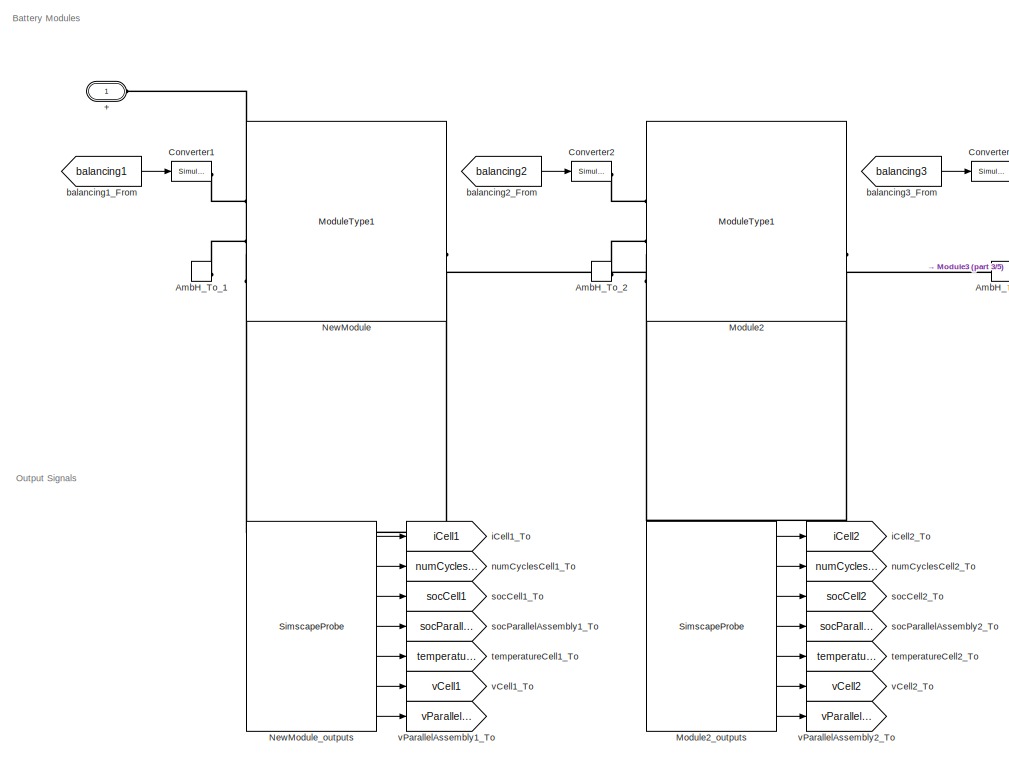
[diagram: ModuleAssemblies/ModuleAssemblyType1 - part 1/5, top left region]
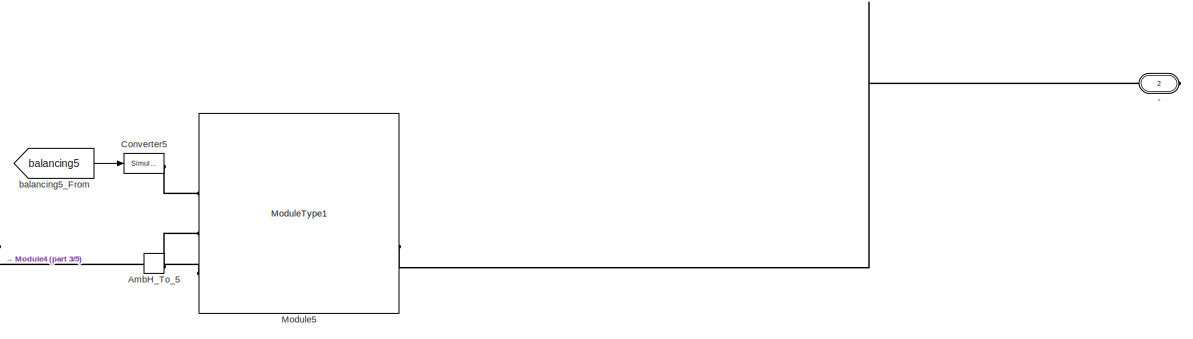
[diagram: ModuleAssemblies/ModuleAssemblyType1 - part 2/5, top right region]
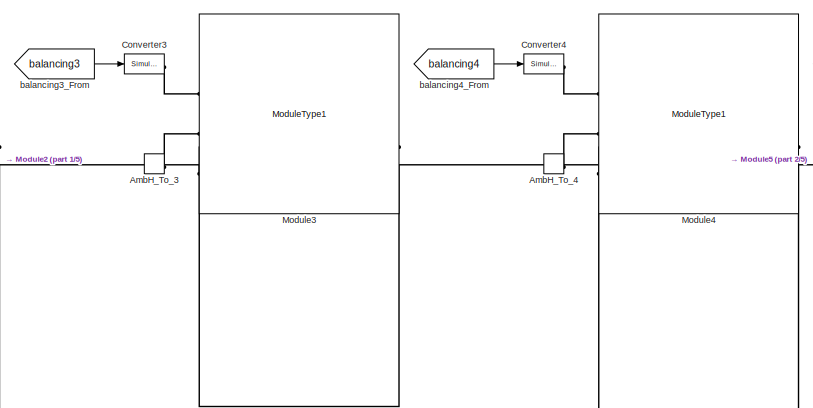
[diagram: ModuleAssemblies/ModuleAssemblyType1 - part 3/5, top center region]
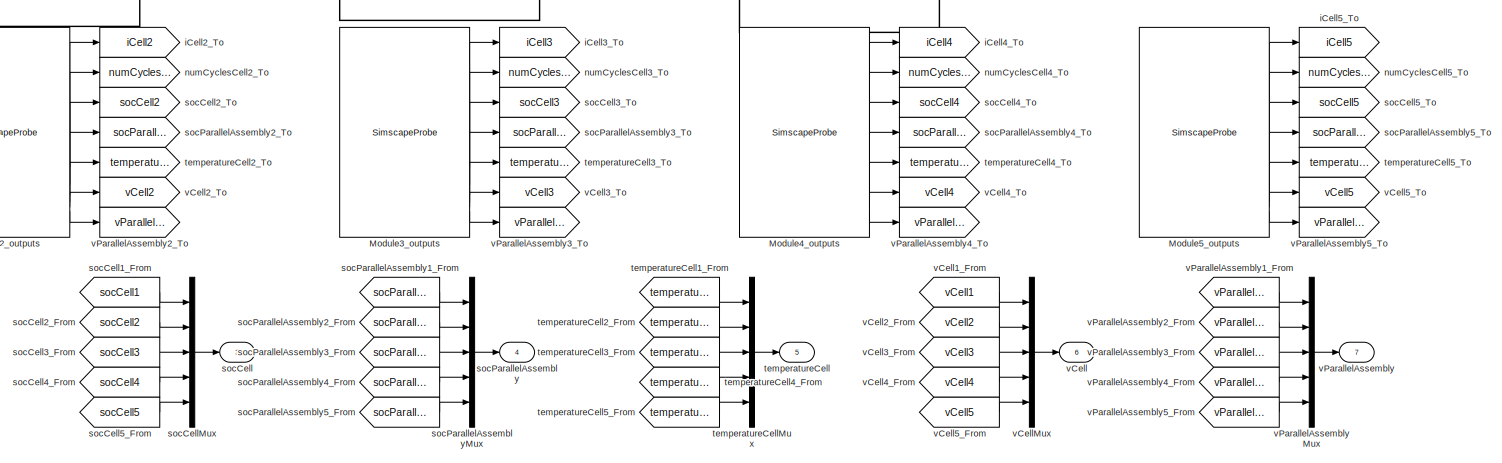
[diagram: ModuleAssemblies/ModuleAssemblyType1 - part 4/5, central region]
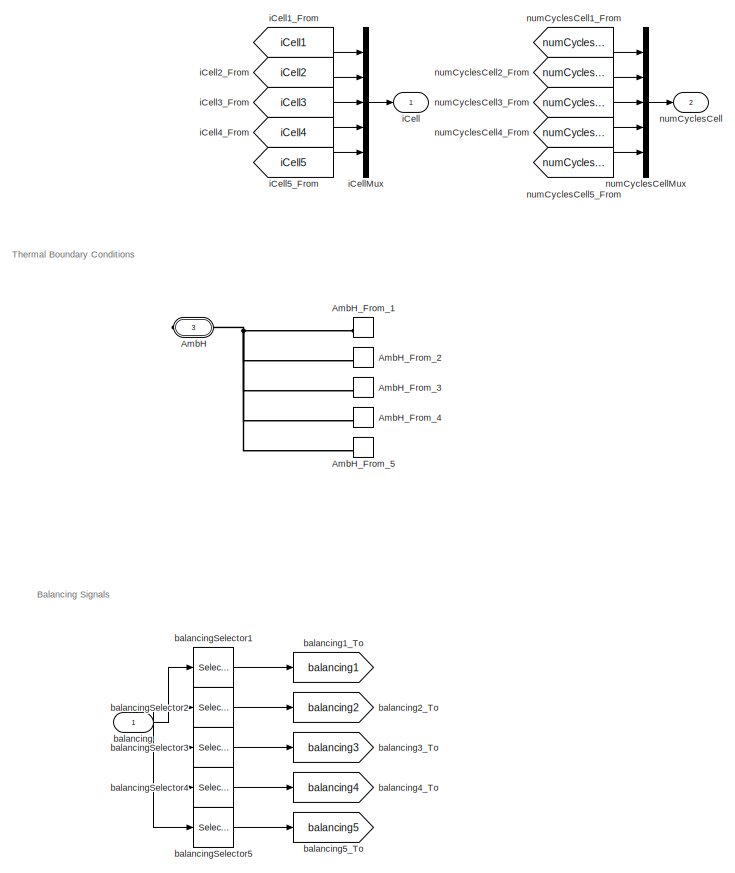
[diagram: ModuleAssemblies/ModuleAssemblyType1 - part 5/5, bottom left region]
BLOCK [SubSystem] ModuleAssemblies/ModuleAssemblyType1
  CopyFcn = battery_builder_rtmsupport('copyfcn',gcbh);
  LoadFcn = battery_builder_rtmsupport('loadfcn',gcbh);
  PreCopyFcn = battery_builder_rtmsupport('precopyfcn',gcbh);
  PreDeleteFcn = battery_builder_rtmsupport('predeletefcn',gcbh);
BLOCK [PMIOPort] ModuleAssemblies/ModuleAssemblyType1/+
  Side = Left
BLOCK [PMIOPort] ModuleAssemblies/ModuleAssemblyType1/-
  Port = 2
  Side = Right
BLOCK [PMIOPort] ModuleAssemblies/ModuleAssemblyType1/AmbH
  ConnectionType = Connection: foundation.thermal.thermal
  Port = 3
  Side = Right
BLOCK [ConnectionLabel] ModuleAssemblies/ModuleAssemblyType1/AmbH_From_1
  Label = ambH_1
BLOCK [ConnectionLabel] ModuleAssemblies/ModuleAssemblyType1/AmbH_From_2
  Label = ambH_2
BLOCK [ConnectionLabel] ModuleAssemblies/ModuleAssemblyType1/AmbH_From_3
  Label = ambH_3
BLOCK [ConnectionLabel] ModuleAssemblies/ModuleAssemblyType1/AmbH_From_4
  Label = ambH_4
BLOCK [ConnectionLabel] ModuleAssemblies/ModuleAssemblyType1/AmbH_From_5
  Label = ambH_5
BLOCK [ConnectionLabel] ModuleAssemblies/ModuleAssemblyType1/AmbH_To_1
  Label = ambH_1
BLOCK [ConnectionLabel] ModuleAssemblies/ModuleAssemblyType1/AmbH_To_2
  Label = ambH_2
BLOCK [ConnectionLabel] ModuleAssemblies/ModuleAssemblyType1/AmbH_To_3
  Label = ambH_3
BLOCK [ConnectionLabel] ModuleAssemblies/ModuleAssemblyType1/AmbH_To_4
  Label = ambH_4
BLOCK [ConnectionLabel] ModuleAssemblies/ModuleAssemblyType1/AmbH_To_5
  Label = ambH_5
BLOCK [Reference] ModuleAssemblies/ModuleAssemblyType1/Converter1  REF=nesl_utility/Simulink-PS
Converter
  SourceBlock = nesl_utility/Simulink-PS\nConverter
  SourceType = Simulink-PS\nConverter
BLOCK [Reference] ModuleAssemblies/ModuleAssemblyType1/Converter2  REF=nesl_utility/Simulink-PS
Converter
  SourceBlock = nesl_utility/Simulink-PS\nConverter
  SourceType = Simulink-PS\nConverter
BLOCK [Reference] ModuleAssemblies/ModuleAssemblyType1/Converter3  REF=nesl_utility/Simulink-PS
Converter
  SourceBlock = nesl_utility/Simulink-PS\nConverter
  SourceType = Simulink-PS\nConverter
BLOCK [Reference] ModuleAssemblies/ModuleAssemblyType1/Converter4  REF=nesl_utility/Simulink-PS
Converter
  SourceBlock = nesl_utility/Simulink-PS\nConverter
  SourceType = Simulink-PS\nConverter
BLOCK [Reference] ModuleAssemblies/ModuleAssemblyType1/Converter5  REF=nesl_utility/Simulink-PS
Converter
  SourceBlock = nesl_utility/Simulink-PS\nConverter
  SourceType = Simulink-PS\nConverter
BLOCK [Reference] ModuleAssemblies/ModuleAssemblyType1/Module2  REF=Batteries_lib/Modules/ModuleType1
  SourceBlock = Batteries_lib/Modules/ModuleType1
  SourceType = ModuleType1
BLOCK [SimscapeProbe] ModuleAssemblies/ModuleAssemblyType1/Module2_outputs
  BoundBlock = 4
  Variables = {iCell, numCyclesCell, socCell, socParallelAssembly, temperatureCell, vCell, vParallelAssembly}
BLOCK [Reference] ModuleAssemblies/ModuleAssemblyType1/Module3  REF=Batteries_lib/Modules/ModuleType1
  SourceBlock = Batteries_lib/Modules/ModuleType1
  SourceType = ModuleType1
BLOCK [SimscapeProbe] ModuleAssemblies/ModuleAssemblyType1/Module3_outputs
  BoundBlock = 5
  Variables = {iCell, numCyclesCell, socCell, socParallelAssembly, temperatureCell, vCell, vParallelAssembly}
BLOCK [Reference] ModuleAssemblies/ModuleAssemblyType1/Module4  REF=Batteries_lib/Modules/ModuleType1
  SourceBlock = Batteries_lib/Modules/ModuleType1
  SourceType = ModuleType1
BLOCK [SimscapeProbe] ModuleAssemblies/ModuleAssemblyType1/Module4_outputs
  BoundBlock = 6
  Variables = {iCell, numCyclesCell, socCell, socParallelAssembly, temperatureCell, vCell, vParallelAssembly}
BLOCK [Reference] ModuleAssemblies/ModuleAssemblyType1/Module5  REF=Batteries_lib/Modules/ModuleType1
  SourceBlock = Batteries_lib/Modules/ModuleType1
  SourceType = ModuleType1
BLOCK [SimscapeProbe] ModuleAssemblies/ModuleAssemblyType1/Module5_outputs
  BoundBlock = 7
  Variables = {iCell, numCyclesCell, socCell, socParallelAssembly, temperatureCell, vCell, vParallelAssembly}
BLOCK [Reference] ModuleAssemblies/ModuleAssemblyType1/NewModule  REF=Batteries_lib/Modules/ModuleType1
  SourceBlock = Batteries_lib/Modules/ModuleType1
  SourceType = ModuleType1
BLOCK [SimscapeProbe] ModuleAssemblies/ModuleAssemblyType1/NewModule_outputs
  BoundBlock = 3
  Variables = {iCell, numCyclesCell, socCell, socParallelAssembly, temperatureCell, vCell, vParallelAssembly}
BLOCK [Inport] ModuleAssemblies/ModuleAssemblyType1/balancing
  PortDimensions = 60
BLOCK [From] ModuleAssemblies/ModuleAssemblyType1/balancing1_From
  GotoTag = balancing1
BLOCK [Goto] ModuleAssemblies/ModuleAssemblyType1/balancing1_To
  GotoTag = balancing1
BLOCK [From] ModuleAssemblies/ModuleAssemblyType1/balancing2_From
  GotoTag = balancing2
BLOCK [Goto] ModuleAssemblies/ModuleAssemblyType1/balancing2_To
  GotoTag = balancing2
BLOCK [From] ModuleAssemblies/ModuleAssemblyType1/balancing3_From
  GotoTag = balancing3
BLOCK [Goto] ModuleAssemblies/ModuleAssemblyType1/balancing3_To
  GotoTag = balancing3
BLOCK [From] ModuleAssemblies/ModuleAssemblyType1/balancing4_From
  GotoTag = balancing4
BLOCK [Goto] ModuleAssemblies/ModuleAssemblyType1/balancing4_To
  GotoTag = balancing4
BLOCK [From] ModuleAssemblies/ModuleAssemblyType1/balancing5_From
  GotoTag = balancing5
BLOCK [Goto] ModuleAssemblies/ModuleAssemblyType1/balancing5_To
  GotoTag = balancing5
BLOCK [Selector] ModuleAssemblies/ModuleAssemblyType1/balancingSelector1
  IndexOptions = Index vector (dialog)
  Indices = [1   2   3   4   5   6   7   8   9  10  11  12]
  InputPortWidth = 60
  OutputSizes = 1
BLOCK [Selector] ModuleAssemblies/ModuleAssemblyType1/balancingSelector2
  IndexOptions = Index vector (dialog)
  Indices = [13  14  15  16  17  18  19  20  21  22  23  24]
  InputPortWidth = 60
  OutputSizes = 1
BLOCK [Selector] ModuleAssemblies/ModuleAssemblyType1/balancingSelector3
  IndexOptions = Index vector (dialog)
  Indices = [25  26  27  28  29  30  31  32  33  34  35  36]
  InputPortWidth = 60
  OutputSizes = 1
BLOCK [Selector] ModuleAssemblies/ModuleAssemblyType1/balancingSelector4
  IndexOptions = Index vector (dialog)
  Indices = [37  38  39  40  41  42  43  44  45  46  47  48]
  InputPortWidth = 60
  OutputSizes = 1
BLOCK [Selector] ModuleAssemblies/ModuleAssemblyType1/balancingSelector5
  IndexOptions = Index vector (dialog)
  Indices = [49  50  51  52  53  54  55  56  57  58  59  60]
  InputPortWidth = 60
  OutputSizes = 1
BLOCK [Outport] ModuleAssemblies/ModuleAssemblyType1/iCell
BLOCK [From] ModuleAssemblies/ModuleAssemblyType1/iCell1_From
  GotoTag = iCell1
BLOCK [Goto] ModuleAssemblies/ModuleAssemblyType1/iCell1_To
  GotoTag = iCell1
BLOCK [From] ModuleAssemblies/ModuleAssemblyType1/iCell2_From
  GotoTag = iCell2
BLOCK [Goto] ModuleAssemblies/ModuleAssemblyType1/iCell2_To
  GotoTag = iCell2
BLOCK [From] ModuleAssemblies/ModuleAssemblyType1/iCell3_From
  GotoTag = iCell3
BLOCK [Goto] ModuleAssemblies/ModuleAssemblyType1/iCell3_To
  GotoTag = iCell3
BLOCK [From] ModuleAssemblies/ModuleAssemblyType1/iCell4_From
  GotoTag = iCell4
BLOCK [Goto] ModuleAssemblies/ModuleAssemblyType1/iCell4_To
  GotoTag = iCell4
BLOCK [From] ModuleAssemblies/ModuleAssemblyType1/iCell5_From
  GotoTag = iCell5
BLOCK [Goto] ModuleAssemblies/ModuleAssemblyType1/iCell5_To
  GotoTag = iCell5
BLOCK [Mux] ModuleAssemblies/ModuleAssemblyType1/iCellMux
  DisplayOption = bar
  Inputs = 5
BLOCK [Outport] ModuleAssemblies/ModuleAssemblyType1/numCyclesCell
  Port = 2
BLOCK [From] ModuleAssemblies/ModuleAssemblyType1/numCyclesCell1_From
  GotoTag = numCyclesCell1
BLOCK [Goto] ModuleAssemblies/ModuleAssemblyType1/numCyclesCell1_To
  GotoTag = numCyclesCell1
BLOCK [From] ModuleAssemblies/ModuleAssemblyType1/numCyclesCell2_From
  GotoTag = numCyclesCell2
BLOCK [Goto] ModuleAssemblies/ModuleAssemblyType1/numCyclesCell2_To
  GotoTag = numCyclesCell2
BLOCK [From] ModuleAssemblies/ModuleAssemblyType1/numCyclesCell3_From
  GotoTag = numCyclesCell3
BLOCK [Goto] ModuleAssemblies/ModuleAssemblyType1/numCyclesCell3_To
  GotoTag = numCyclesCell3
BLOCK [From] ModuleAssemblies/ModuleAssemblyType1/numCyclesCell4_From
  GotoTag = numCyclesCell4
BLOCK [Goto] ModuleAssemblies/ModuleAssemblyType1/numCyclesCell4_To
  GotoTag = numCyclesCell4
BLOCK [From] ModuleAssemblies/ModuleAssemblyType1/numCyclesCell5_From
  GotoTag = numCyclesCell5
BLOCK [Goto] ModuleAssemblies/ModuleAssemblyType1/numCyclesCell5_To
  GotoTag = numCyclesCell5
BLOCK [Mux] ModuleAssemblies/ModuleAssemblyType1/numCyclesCellMux
  DisplayOption = bar
  Inputs = 5
BLOCK [Outport] ModuleAssemblies/ModuleAssemblyType1/socCell
  Port = 3
BLOCK [From] ModuleAssemblies/ModuleAssemblyType1/socCell1_From
  GotoTag = socCell1
BLOCK [Goto] ModuleAssemblies/ModuleAssemblyType1/socCell1_To
  GotoTag = socCell1
BLOCK [From] ModuleAssemblies/ModuleAssemblyType1/socCell2_From
  GotoTag = socCell2
BLOCK [Goto] ModuleAssemblies/ModuleAssemblyType1/socCell2_To
  GotoTag = socCell2
BLOCK [From] ModuleAssemblies/ModuleAssemblyType1/socCell3_From
  GotoTag = socCell3
BLOCK [Goto] ModuleAssemblies/ModuleAssemblyType1/socCell3_To
  GotoTag = socCell3
BLOCK [From] ModuleAssemblies/ModuleAssemblyType1/socCell4_From
  GotoTag = socCell4
BLOCK [Goto] ModuleAssemblies/ModuleAssemblyType1/socCell4_To
  GotoTag = socCell4
BLOCK [From] ModuleAssemblies/ModuleAssemblyType1/socCell5_From
  GotoTag = socCell5
BLOCK [Goto] ModuleAssemblies/ModuleAssemblyType1/socCell5_To
  GotoTag = socCell5
BLOCK [Mux] ModuleAssemblies/ModuleAssemblyType1/socCellMux
  DisplayOption = bar
  Inputs = 5
BLOCK [Outport] ModuleAssemblies/ModuleAssemblyType1/socParallelAssembly
  Port = 4
BLOCK [From] ModuleAssemblies/ModuleAssemblyType1/socParallelAssembly1_From
  GotoTag = socParallelAssembly1
BLOCK [Goto] ModuleAssemblies/ModuleAssemblyType1/socParallelAssembly1_To
  GotoTag = socParallelAssembly1
BLOCK [From] ModuleAssemblies/ModuleAssemblyType1/socParallelAssembly2_From
  GotoTag = socParallelAssembly2
BLOCK [Goto] ModuleAssemblies/ModuleAssemblyType1/socParallelAssembly2_To
  GotoTag = socParallelAssembly2
BLOCK [From] ModuleAssemblies/ModuleAssemblyType1/socParallelAssembly3_From
  GotoTag = socParallelAssembly3
BLOCK [Goto] ModuleAssemblies/ModuleAssemblyType1/socParallelAssembly3_To
  GotoTag = socParallelAssembly3
BLOCK [From] ModuleAssemblies/ModuleAssemblyType1/socParallelAssembly4_From
  GotoTag = socParallelAssembly4
BLOCK [Goto] ModuleAssemblies/ModuleAssemblyType1/socParallelAssembly4_To
  GotoTag = socParallelAssembly4
BLOCK [From] ModuleAssemblies/ModuleAssemblyType1/socParallelAssembly5_From
  GotoTag = socParallelAssembly5
BLOCK [Goto] ModuleAssemblies/ModuleAssemblyType1/socParallelAssembly5_To
  GotoTag = socParallelAssembly5
BLOCK [Mux] ModuleAssemblies/ModuleAssemblyType1/socParallelAssemblyMux
  DisplayOption = bar
  Inputs = 5
BLOCK [Outport] ModuleAssemblies/ModuleAssemblyType1/temperatureCell
  Port = 5
BLOCK [From] ModuleAssemblies/ModuleAssemblyType1/temperatureCell1_From
  GotoTag = temperatureCell1
BLOCK [Goto] ModuleAssemblies/ModuleAssemblyType1/temperatureCell1_To
  GotoTag = temperatureCell1
BLOCK [From] ModuleAssemblies/ModuleAssemblyType1/temperatureCell2_From
  GotoTag = temperatureCell2
BLOCK [Goto] ModuleAssemblies/ModuleAssemblyType1/temperatureCell2_To
  GotoTag = temperatureCell2
BLOCK [From] ModuleAssemblies/ModuleAssemblyType1/temperatureCell3_From
  GotoTag = temperatureCell3
BLOCK [Goto] ModuleAssemblies/ModuleAssemblyType1/temperatureCell3_To
  GotoTag = temperatureCell3
BLOCK [From] ModuleAssemblies/ModuleAssemblyType1/temperatureCell4_From
  GotoTag = temperatureCell4
BLOCK [Goto] ModuleAssemblies/ModuleAssemblyType1/temperatureCell4_To
  GotoTag = temperatureCell4
BLOCK [From] ModuleAssemblies/ModuleAssemblyType1/temperatureCell5_From
  GotoTag = temperatureCell5
BLOCK [Goto] ModuleAssemblies/ModuleAssemblyType1/temperatureCell5_To
  GotoTag = temperatureCell5
BLOCK [Mux] ModuleAssemblies/ModuleAssemblyType1/temperatureCellMux
  DisplayOption = bar
  Inputs = 5
BLOCK [Outport] ModuleAssemblies/ModuleAssemblyType1/vCell
  Port = 6
BLOCK [From] ModuleAssemblies/ModuleAssemblyType1/vCell1_From
  GotoTag = vCell1
BLOCK [Goto] ModuleAssemblies/ModuleAssemblyType1/vCell1_To
  GotoTag = vCell1
BLOCK [From] ModuleAssemblies/ModuleAssemblyType1/vCell2_From
  GotoTag = vCell2
BLOCK [Goto] ModuleAssemblies/ModuleAssemblyType1/vCell2_To
  GotoTag = vCell2
BLOCK [From] ModuleAssemblies/ModuleAssemblyType1/vCell3_From
  GotoTag = vCell3
BLOCK [Goto] ModuleAssemblies/ModuleAssemblyType1/vCell3_To
  GotoTag = vCell3
BLOCK [From] ModuleAssemblies/ModuleAssemblyType1/vCell4_From
  GotoTag = vCell4
BLOCK [Goto] ModuleAssemblies/ModuleAssemblyType1/vCell4_To
  GotoTag = vCell4
BLOCK [From] ModuleAssemblies/ModuleAssemblyType1/vCell5_From
  GotoTag = vCell5
BLOCK [Goto] ModuleAssemblies/ModuleAssemblyType1/vCell5_To
  GotoTag = vCell5
BLOCK [Mux] ModuleAssemblies/ModuleAssemblyType1/vCellMux
  DisplayOption = bar
  Inputs = 5
BLOCK [Outport] ModuleAssemblies/ModuleAssemblyType1/vParallelAssembly
  Port = 7
BLOCK [From] ModuleAssemblies/ModuleAssemblyType1/vParallelAssembly1_From
  GotoTag = vParallelAssembly1
BLOCK [Goto] ModuleAssemblies/ModuleAssemblyType1/vParallelAssembly1_To
  GotoTag = vParallelAssembly1
BLOCK [From] ModuleAssemblies/ModuleAssemblyType1/vParallelAssembly2_From
  GotoTag = vParallelAssembly2
BLOCK [Goto] ModuleAssemblies/ModuleAssemblyType1/vParallelAssembly2_To
  GotoTag = vParallelAssembly2
BLOCK [From] ModuleAssemblies/ModuleAssemblyType1/vParallelAssembly3_From
  GotoTag = vParallelAssembly3
BLOCK [Goto] ModuleAssemblies/ModuleAssemblyType1/vParallelAssembly3_To
  GotoTag = vParallelAssembly3
BLOCK [From] ModuleAssemblies/ModuleAssemblyType1/vParallelAssembly4_From
  GotoTag = vParallelAssembly4
BLOCK [Goto] ModuleAssemblies/ModuleAssemblyType1/vParallelAssembly4_To
  GotoTag = vParallelAssembly4
BLOCK [From] ModuleAssemblies/ModuleAssemblyType1/vParallelAssembly5_From
  GotoTag = vParallelAssembly5
BLOCK [Goto] ModuleAssemblies/ModuleAssemblyType1/vParallelAssembly5_To
  GotoTag = vParallelAssembly5
BLOCK [Mux] ModuleAssemblies/ModuleAssemblyType1/vParallelAssemblyMux
  DisplayOption = bar
  Inputs = 5
ANNOTATION FE11: Balancing Signals
ANNOTATION FE11: Battery Module Assemblies
ANNOTATION FE11: Output Signals
ANNOTATION FE11: Thermal Boundary Conditions
ANNOTATION FE11/ModuleAssembly2: Balancing Signals
ANNOTATION FE11/ModuleAssembly2: Battery Modules
ANNOTATION FE11/ModuleAssembly2: Output Signals
ANNOTATION FE11/ModuleAssembly2: Thermal Boundary Conditions
ANNOTATION FE11/NewModuleAssembly: Balancing Signals
ANNOTATION FE11/NewModuleAssembly: Battery Modules
ANNOTATION FE11/NewModuleAssembly: Output Signals
ANNOTATION FE11/NewModuleAssembly: Thermal Boundary Conditions
ANNOTATION ModuleAssemblies/ModuleAssemblyType1: Balancing Signals
ANNOTATION ModuleAssemblies/ModuleAssemblyType1: Battery Modules
ANNOTATION ModuleAssemblies/ModuleAssemblyType1: Output Signals
ANNOTATION ModuleAssemblies/ModuleAssemblyType1: Thermal Boundary Conditions
LINE FE11/ModuleAssembly2/Module2_outputs:1 -> FE11/ModuleAssembly2/iCell2_To:1
LINE FE11/ModuleAssembly2/Module2_outputs:2 -> FE11/ModuleAssembly2/numCyclesCell2_To:1
LINE FE11/ModuleAssembly2/Module2_outputs:3 -> FE11/ModuleAssembly2/socCell2_To:1
LINE FE11/ModuleAssembly2/Module2_outputs:4 -> FE11/ModuleAssembly2/socParallelAssembly2_To:1
LINE FE11/ModuleAssembly2/Module2_outputs:5 -> FE11/ModuleAssembly2/temperatureCell2_To:1
LINE FE11/ModuleAssembly2/Module2_outputs:6 -> FE11/ModuleAssembly2/vCell2_To:1
LINE FE11/ModuleAssembly2/Module2_outputs:7 -> FE11/ModuleAssembly2/vParallelAssembly2_To:1
LINE FE11/ModuleAssembly2/Module3_outputs:1 -> FE11/ModuleAssembly2/iCell3_To:1
LINE FE11/ModuleAssembly2/Module3_outputs:2 -> FE11/ModuleAssembly2/numCyclesCell3_To:1
LINE FE11/ModuleAssembly2/Module3_outputs:3 -> FE11/ModuleAssembly2/socCell3_To:1
LINE FE11/ModuleAssembly2/Module3_outputs:4 -> FE11/ModuleAssembly2/socParallelAssembly3_To:1
LINE FE11/ModuleAssembly2/Module3_outputs:5 -> FE11/ModuleAssembly2/temperatureCell3_To:1
LINE FE11/ModuleAssembly2/Module3_outputs:6 -> FE11/ModuleAssembly2/vCell3_To:1
LINE FE11/ModuleAssembly2/Module3_outputs:7 -> FE11/ModuleAssembly2/vParallelAssembly3_To:1
LINE FE11/ModuleAssembly2/Module4_outputs:1 -> FE11/ModuleAssembly2/iCell4_To:1
LINE FE11/ModuleAssembly2/Module4_outputs:2 -> FE11/ModuleAssembly2/numCyclesCell4_To:1
LINE FE11/ModuleAssembly2/Module4_outputs:3 -> FE11/ModuleAssembly2/socCell4_To:1
LINE FE11/ModuleAssembly2/Module4_outputs:4 -> FE11/ModuleAssembly2/socParallelAssembly4_To:1
LINE FE11/ModuleAssembly2/Module4_outputs:5 -> FE11/ModuleAssembly2/temperatureCell4_To:1
LINE FE11/ModuleAssembly2/Module4_outputs:6 -> FE11/ModuleAssembly2/vCell4_To:1
LINE FE11/ModuleAssembly2/Module4_outputs:7 -> FE11/ModuleAssembly2/vParallelAssembly4_To:1
LINE FE11/ModuleAssembly2/Module5_outputs:1 -> FE11/ModuleAssembly2/iCell5_To:1
LINE FE11/ModuleAssembly2/Module5_outputs:2 -> FE11/ModuleAssembly2/numCyclesCell5_To:1
LINE FE11/ModuleAssembly2/Module5_outputs:3 -> FE11/ModuleAssembly2/socCell5_To:1
LINE FE11/ModuleAssembly2/Module5_outputs:4 -> FE11/ModuleAssembly2/socParallelAssembly5_To:1
LINE FE11/ModuleAssembly2/Module5_outputs:5 -> FE11/ModuleAssembly2/temperatureCell5_To:1
LINE FE11/ModuleAssembly2/Module5_outputs:6 -> FE11/ModuleAssembly2/vCell5_To:1
LINE FE11/ModuleAssembly2/Module5_outputs:7 -> FE11/ModuleAssembly2/vParallelAssembly5_To:1
LINE FE11/ModuleAssembly2/NewModule_outputs:1 -> FE11/ModuleAssembly2/iCell1_To:1
LINE FE11/ModuleAssembly2/NewModule_outputs:2 -> FE11/ModuleAssembly2/numCyclesCell1_To:1
LINE FE11/ModuleAssembly2/NewModule_outputs:3 -> FE11/ModuleAssembly2/socCell1_To:1
LINE FE11/ModuleAssembly2/NewModule_outputs:4 -> FE11/ModuleAssembly2/socParallelAssembly1_To:1
LINE FE11/ModuleAssembly2/NewModule_outputs:5 -> FE11/ModuleAssembly2/temperatureCell1_To:1
LINE FE11/ModuleAssembly2/NewModule_outputs:6 -> FE11/ModuleAssembly2/vCell1_To:1
LINE FE11/ModuleAssembly2/NewModule_outputs:7 -> FE11/ModuleAssembly2/vParallelAssembly1_To:1
LINE FE11/ModuleAssembly2/balancing1_From:1 -> FE11/ModuleAssembly2/Converter1:1
LINE FE11/ModuleAssembly2/balancing2_From:1 -> FE11/ModuleAssembly2/Converter2:1
LINE FE11/ModuleAssembly2/balancing3_From:1 -> FE11/ModuleAssembly2/Converter3:1
LINE FE11/ModuleAssembly2/balancing4_From:1 -> FE11/ModuleAssembly2/Converter4:1
LINE FE11/ModuleAssembly2/balancing5_From:1 -> FE11/ModuleAssembly2/Converter5:1
NET FE11/ModuleAssembly2/balancing:1 -> FE11/ModuleAssembly2/balancingSelector1:1, FE11/ModuleAssembly2/balancingSelector2:1, FE11/ModuleAssembly2/balancingSelector3:1, FE11/ModuleAssembly2/balancingSelector4:1, FE11/ModuleAssembly2/balancingSelector5:1
LINE FE11/ModuleAssembly2/balancingSelector1:1 -> FE11/ModuleAssembly2/balancing1_To:1
LINE FE11/ModuleAssembly2/balancingSelector2:1 -> FE11/ModuleAssembly2/balancing2_To:1
LINE FE11/ModuleAssembly2/balancingSelector3:1 -> FE11/ModuleAssembly2/balancing3_To:1
LINE FE11/ModuleAssembly2/balancingSelector4:1 -> FE11/ModuleAssembly2/balancing4_To:1
LINE FE11/ModuleAssembly2/balancingSelector5:1 -> FE11/ModuleAssembly2/balancing5_To:1
LINE FE11/ModuleAssembly2/iCell1_From:1 -> FE11/ModuleAssembly2/iCellMux:1
LINE FE11/ModuleAssembly2/iCell2_From:1 -> FE11/ModuleAssembly2/iCellMux:2
LINE FE11/ModuleAssembly2/iCell3_From:1 -> FE11/ModuleAssembly2/iCellMux:3
LINE FE11/ModuleAssembly2/iCell4_From:1 -> FE11/ModuleAssembly2/iCellMux:4
LINE FE11/ModuleAssembly2/iCell5_From:1 -> FE11/ModuleAssembly2/iCellMux:5
LINE FE11/ModuleAssembly2/iCellMux:1 -> FE11/ModuleAssembly2/iCell:1
LINE FE11/ModuleAssembly2/numCyclesCell1_From:1 -> FE11/ModuleAssembly2/numCyclesCellMux:1
LINE FE11/ModuleAssembly2/numCyclesCell2_From:1 -> FE11/ModuleAssembly2/numCyclesCellMux:2
LINE FE11/ModuleAssembly2/numCyclesCell3_From:1 -> FE11/ModuleAssembly2/numCyclesCellMux:3
LINE FE11/ModuleAssembly2/numCyclesCell4_From:1 -> FE11/ModuleAssembly2/numCyclesCellMux:4
LINE FE11/ModuleAssembly2/numCyclesCell5_From:1 -> FE11/ModuleAssembly2/numCyclesCellMux:5
LINE FE11/ModuleAssembly2/numCyclesCellMux:1 -> FE11/ModuleAssembly2/numCyclesCell:1
LINE FE11/ModuleAssembly2/socCell1_From:1 -> FE11/ModuleAssembly2/socCellMux:1
LINE FE11/ModuleAssembly2/socCell2_From:1 -> FE11/ModuleAssembly2/socCellMux:2
LINE FE11/ModuleAssembly2/socCell3_From:1 -> FE11/ModuleAssembly2/socCellMux:3
LINE FE11/ModuleAssembly2/socCell4_From:1 -> FE11/ModuleAssembly2/socCellMux:4
LINE FE11/ModuleAssembly2/socCell5_From:1 -> FE11/ModuleAssembly2/socCellMux:5
LINE FE11/ModuleAssembly2/socCellMux:1 -> FE11/ModuleAssembly2/socCell:1
LINE FE11/ModuleAssembly2/socParallelAssembly1_From:1 -> FE11/ModuleAssembly2/socParallelAssemblyMux:1
LINE FE11/ModuleAssembly2/socParallelAssembly2_From:1 -> FE11/ModuleAssembly2/socParallelAssemblyMux:2
LINE FE11/ModuleAssembly2/socParallelAssembly3_From:1 -> FE11/ModuleAssembly2/socParallelAssemblyMux:3
LINE FE11/ModuleAssembly2/socParallelAssembly4_From:1 -> FE11/ModuleAssembly2/socParallelAssemblyMux:4
LINE FE11/ModuleAssembly2/socParallelAssembly5_From:1 -> FE11/ModuleAssembly2/socParallelAssemblyMux:5
LINE FE11/ModuleAssembly2/socParallelAssemblyMux:1 -> FE11/ModuleAssembly2/socParallelAssembly:1
LINE FE11/ModuleAssembly2/temperatureCell1_From:1 -> FE11/ModuleAssembly2/temperatureCellMux:1
LINE FE11/ModuleAssembly2/temperatureCell2_From:1 -> FE11/ModuleAssembly2/temperatureCellMux:2
LINE FE11/ModuleAssembly2/temperatureCell3_From:1 -> FE11/ModuleAssembly2/temperatureCellMux:3
LINE FE11/ModuleAssembly2/temperatureCell4_From:1 -> FE11/ModuleAssembly2/temperatureCellMux:4
LINE FE11/ModuleAssembly2/temperatureCell5_From:1 -> FE11/ModuleAssembly2/temperatureCellMux:5
LINE FE11/ModuleAssembly2/temperatureCellMux:1 -> FE11/ModuleAssembly2/temperatureCell:1
LINE FE11/ModuleAssembly2/vCell1_From:1 -> FE11/ModuleAssembly2/vCellMux:1
LINE FE11/ModuleAssembly2/vCell2_From:1 -> FE11/ModuleAssembly2/vCellMux:2
LINE FE11/ModuleAssembly2/vCell3_From:1 -> FE11/ModuleAssembly2/vCellMux:3
LINE FE11/ModuleAssembly2/vCell4_From:1 -> FE11/ModuleAssembly2/vCellMux:4
LINE FE11/ModuleAssembly2/vCell5_From:1 -> FE11/ModuleAssembly2/vCellMux:5
LINE FE11/ModuleAssembly2/vCellMux:1 -> FE11/ModuleAssembly2/vCell:1
LINE FE11/ModuleAssembly2/vParallelAssembly1_From:1 -> FE11/ModuleAssembly2/vParallelAssemblyMux:1
LINE FE11/ModuleAssembly2/vParallelAssembly2_From:1 -> FE11/ModuleAssembly2/vParallelAssemblyMux:2
LINE FE11/ModuleAssembly2/vParallelAssembly3_From:1 -> FE11/ModuleAssembly2/vParallelAssemblyMux:3
LINE FE11/ModuleAssembly2/vParallelAssembly4_From:1 -> FE11/ModuleAssembly2/vParallelAssemblyMux:4
LINE FE11/ModuleAssembly2/vParallelAssembly5_From:1 -> FE11/ModuleAssembly2/vParallelAssemblyMux:5
LINE FE11/ModuleAssembly2/vParallelAssemblyMux:1 -> FE11/ModuleAssembly2/vParallelAssembly:1
LINE FE11/ModuleAssembly2:1 -> FE11/iCellTo2:1
LINE FE11/ModuleAssembly2:2 -> FE11/numCyclesCellTo2:1
LINE FE11/ModuleAssembly2:3 -> FE11/socCellTo2:1
LINE FE11/ModuleAssembly2:4 -> FE11/socParallelAssemblyTo2:1
LINE FE11/ModuleAssembly2:5 -> FE11/temperatureCellTo2:1
LINE FE11/ModuleAssembly2:6 -> FE11/vCellTo2:1
LINE FE11/ModuleAssembly2:7 -> FE11/vParallelAssemblyTo2:1
LINE FE11/NewModuleAssembly/Module2_outputs:1 -> FE11/NewModuleAssembly/iCell2_To:1
LINE FE11/NewModuleAssembly/Module2_outputs:2 -> FE11/NewModuleAssembly/numCyclesCell2_To:1
LINE FE11/NewModuleAssembly/Module2_outputs:3 -> FE11/NewModuleAssembly/socCell2_To:1
LINE FE11/NewModuleAssembly/Module2_outputs:4 -> FE11/NewModuleAssembly/socParallelAssembly2_To:1
LINE FE11/NewModuleAssembly/Module2_outputs:5 -> FE11/NewModuleAssembly/temperatureCell2_To:1
LINE FE11/NewModuleAssembly/Module2_outputs:6 -> FE11/NewModuleAssembly/vCell2_To:1
LINE FE11/NewModuleAssembly/Module2_outputs:7 -> FE11/NewModuleAssembly/vParallelAssembly2_To:1
LINE FE11/NewModuleAssembly/Module3_outputs:1 -> FE11/NewModuleAssembly/iCell3_To:1
LINE FE11/NewModuleAssembly/Module3_outputs:2 -> FE11/NewModuleAssembly/numCyclesCell3_To:1
LINE FE11/NewModuleAssembly/Module3_outputs:3 -> FE11/NewModuleAssembly/socCell3_To:1
LINE FE11/NewModuleAssembly/Module3_outputs:4 -> FE11/NewModuleAssembly/socParallelAssembly3_To:1
LINE FE11/NewModuleAssembly/Module3_outputs:5 -> FE11/NewModuleAssembly/temperatureCell3_To:1
LINE FE11/NewModuleAssembly/Module3_outputs:6 -> FE11/NewModuleAssembly/vCell3_To:1
LINE FE11/NewModuleAssembly/Module3_outputs:7 -> FE11/NewModuleAssembly/vParallelAssembly3_To:1
LINE FE11/NewModuleAssembly/Module4_outputs:1 -> FE11/NewModuleAssembly/iCell4_To:1
LINE FE11/NewModuleAssembly/Module4_outputs:2 -> FE11/NewModuleAssembly/numCyclesCell4_To:1
LINE FE11/NewModuleAssembly/Module4_outputs:3 -> FE11/NewModuleAssembly/socCell4_To:1
LINE FE11/NewModuleAssembly/Module4_outputs:4 -> FE11/NewModuleAssembly/socParallelAssembly4_To:1
LINE FE11/NewModuleAssembly/Module4_outputs:5 -> FE11/NewModuleAssembly/temperatureCell4_To:1
LINE FE11/NewModuleAssembly/Module4_outputs:6 -> FE11/NewModuleAssembly/vCell4_To:1
LINE FE11/NewModuleAssembly/Module4_outputs:7 -> FE11/NewModuleAssembly/vParallelAssembly4_To:1
LINE FE11/NewModuleAssembly/Module5_outputs:1 -> FE11/NewModuleAssembly/iCell5_To:1
LINE FE11/NewModuleAssembly/Module5_outputs:2 -> FE11/NewModuleAssembly/numCyclesCell5_To:1
LINE FE11/NewModuleAssembly/Module5_outputs:3 -> FE11/NewModuleAssembly/socCell5_To:1
LINE FE11/NewModuleAssembly/Module5_outputs:4 -> FE11/NewModuleAssembly/socParallelAssembly5_To:1
LINE FE11/NewModuleAssembly/Module5_outputs:5 -> FE11/NewModuleAssembly/temperatureCell5_To:1
LINE FE11/NewModuleAssembly/Module5_outputs:6 -> FE11/NewModuleAssembly/vCell5_To:1
LINE FE11/NewModuleAssembly/Module5_outputs:7 -> FE11/NewModuleAssembly/vParallelAssembly5_To:1
LINE FE11/NewModuleAssembly/NewModule_outputs:1 -> FE11/NewModuleAssembly/iCell1_To:1
LINE FE11/NewModuleAssembly/NewModule_outputs:2 -> FE11/NewModuleAssembly/numCyclesCell1_To:1
LINE FE11/NewModuleAssembly/NewModule_outputs:3 -> FE11/NewModuleAssembly/socCell1_To:1
LINE FE11/NewModuleAssembly/NewModule_outputs:4 -> FE11/NewModuleAssembly/socParallelAssembly1_To:1
LINE FE11/NewModuleAssembly/NewModule_outputs:5 -> FE11/NewModuleAssembly/temperatureCell1_To:1
LINE FE11/NewModuleAssembly/NewModule_outputs:6 -> FE11/NewModuleAssembly/vCell1_To:1
LINE FE11/NewModuleAssembly/NewModule_outputs:7 -> FE11/NewModuleAssembly/vParallelAssembly1_To:1
LINE FE11/NewModuleAssembly/balancing1_From:1 -> FE11/NewModuleAssembly/Converter1:1
LINE FE11/NewModuleAssembly/balancing2_From:1 -> FE11/NewModuleAssembly/Converter2:1
LINE FE11/NewModuleAssembly/balancing3_From:1 -> FE11/NewModuleAssembly/Converter3:1
LINE FE11/NewModuleAssembly/balancing4_From:1 -> FE11/NewModuleAssembly/Converter4:1
LINE FE11/NewModuleAssembly/balancing5_From:1 -> FE11/NewModuleAssembly/Converter5:1
NET FE11/NewModuleAssembly/balancing:1 -> FE11/NewModuleAssembly/balancingSelector1:1, FE11/NewModuleAssembly/balancingSelector2:1, FE11/NewModuleAssembly/balancingSelector3:1, FE11/NewModuleAssembly/balancingSelector4:1, FE11/NewModuleAssembly/balancingSelector5:1
LINE FE11/NewModuleAssembly/balancingSelector1:1 -> FE11/NewModuleAssembly/balancing1_To:1
LINE FE11/NewModuleAssembly/balancingSelector2:1 -> FE11/NewModuleAssembly/balancing2_To:1
LINE FE11/NewModuleAssembly/balancingSelector3:1 -> FE11/NewModuleAssembly/balancing3_To:1
LINE FE11/NewModuleAssembly/balancingSelector4:1 -> FE11/NewModuleAssembly/balancing4_To:1
LINE FE11/NewModuleAssembly/balancingSelector5:1 -> FE11/NewModuleAssembly/balancing5_To:1
LINE FE11/NewModuleAssembly/iCell1_From:1 -> FE11/NewModuleAssembly/iCellMux:1
LINE FE11/NewModuleAssembly/iCell2_From:1 -> FE11/NewModuleAssembly/iCellMux:2
LINE FE11/NewModuleAssembly/iCell3_From:1 -> FE11/NewModuleAssembly/iCellMux:3
LINE FE11/NewModuleAssembly/iCell4_From:1 -> FE11/NewModuleAssembly/iCellMux:4
LINE FE11/NewModuleAssembly/iCell5_From:1 -> FE11/NewModuleAssembly/iCellMux:5
LINE FE11/NewModuleAssembly/iCellMux:1 -> FE11/NewModuleAssembly/iCell:1
LINE FE11/NewModuleAssembly/numCyclesCell1_From:1 -> FE11/NewModuleAssembly/numCyclesCellMux:1
LINE FE11/NewModuleAssembly/numCyclesCell2_From:1 -> FE11/NewModuleAssembly/numCyclesCellMux:2
LINE FE11/NewModuleAssembly/numCyclesCell3_From:1 -> FE11/NewModuleAssembly/numCyclesCellMux:3
LINE FE11/NewModuleAssembly/numCyclesCell4_From:1 -> FE11/NewModuleAssembly/numCyclesCellMux:4
LINE FE11/NewModuleAssembly/numCyclesCell5_From:1 -> FE11/NewModuleAssembly/numCyclesCellMux:5
LINE FE11/NewModuleAssembly/numCyclesCellMux:1 -> FE11/NewModuleAssembly/numCyclesCell:1
LINE FE11/NewModuleAssembly/socCell1_From:1 -> FE11/NewModuleAssembly/socCellMux:1
LINE FE11/NewModuleAssembly/socCell2_From:1 -> FE11/NewModuleAssembly/socCellMux:2
LINE FE11/NewModuleAssembly/socCell3_From:1 -> FE11/NewModuleAssembly/socCellMux:3
LINE FE11/NewModuleAssembly/socCell4_From:1 -> FE11/NewModuleAssembly/socCellMux:4
LINE FE11/NewModuleAssembly/socCell5_From:1 -> FE11/NewModuleAssembly/socCellMux:5
LINE FE11/NewModuleAssembly/socCellMux:1 -> FE11/NewModuleAssembly/socCell:1
LINE FE11/NewModuleAssembly/socParallelAssembly1_From:1 -> FE11/NewModuleAssembly/socParallelAssemblyMux:1
LINE FE11/NewModuleAssembly/socParallelAssembly2_From:1 -> FE11/NewModuleAssembly/socParallelAssemblyMux:2
LINE FE11/NewModuleAssembly/socParallelAssembly3_From:1 -> FE11/NewModuleAssembly/socParallelAssemblyMux:3
LINE FE11/NewModuleAssembly/socParallelAssembly4_From:1 -> FE11/NewModuleAssembly/socParallelAssemblyMux:4
LINE FE11/NewModuleAssembly/socParallelAssembly5_From:1 -> FE11/NewModuleAssembly/socParallelAssemblyMux:5
LINE FE11/NewModuleAssembly/socParallelAssemblyMux:1 -> FE11/NewModuleAssembly/socParallelAssembly:1
LINE FE11/NewModuleAssembly/temperatureCell1_From:1 -> FE11/NewModuleAssembly/temperatureCellMux:1
LINE FE11/NewModuleAssembly/temperatureCell2_From:1 -> FE11/NewModuleAssembly/temperatureCellMux:2
LINE FE11/NewModuleAssembly/temperatureCell3_From:1 -> FE11/NewModuleAssembly/temperatureCellMux:3
LINE FE11/NewModuleAssembly/temperatureCell4_From:1 -> FE11/NewModuleAssembly/temperatureCellMux:4
LINE FE11/NewModuleAssembly/temperatureCell5_From:1 -> FE11/NewModuleAssembly/temperatureCellMux:5
LINE FE11/NewModuleAssembly/temperatureCellMux:1 -> FE11/NewModuleAssembly/temperatureCell:1
LINE FE11/NewModuleAssembly/vCell1_From:1 -> FE11/NewModuleAssembly/vCellMux:1
LINE FE11/NewModuleAssembly/vCell2_From:1 -> FE11/NewModuleAssembly/vCellMux:2
LINE FE11/NewModuleAssembly/vCell3_From:1 -> FE11/NewModuleAssembly/vCellMux:3
LINE FE11/NewModuleAssembly/vCell4_From:1 -> FE11/NewModuleAssembly/vCellMux:4
LINE FE11/NewModuleAssembly/vCell5_From:1 -> FE11/NewModuleAssembly/vCellMux:5
LINE FE11/NewModuleAssembly/vCellMux:1 -> FE11/NewModuleAssembly/vCell:1
LINE FE11/NewModuleAssembly/vParallelAssembly1_From:1 -> FE11/NewModuleAssembly/vParallelAssemblyMux:1
LINE FE11/NewModuleAssembly/vParallelAssembly2_From:1 -> FE11/NewModuleAssembly/vParallelAssemblyMux:2
LINE FE11/NewModuleAssembly/vParallelAssembly3_From:1 -> FE11/NewModuleAssembly/vParallelAssemblyMux:3
LINE FE11/NewModuleAssembly/vParallelAssembly4_From:1 -> FE11/NewModuleAssembly/vParallelAssemblyMux:4
LINE FE11/NewModuleAssembly/vParallelAssembly5_From:1 -> FE11/NewModuleAssembly/vParallelAssemblyMux:5
LINE FE11/NewModuleAssembly/vParallelAssemblyMux:1 -> FE11/NewModuleAssembly/vParallelAssembly:1
LINE FE11/NewModuleAssembly:1 -> FE11/iCellTo1:1
LINE FE11/NewModuleAssembly:2 -> FE11/numCyclesCellTo1:1
LINE FE11/NewModuleAssembly:3 -> FE11/socCellTo1:1
LINE FE11/NewModuleAssembly:4 -> FE11/socParallelAssemblyTo1:1
LINE FE11/NewModuleAssembly:5 -> FE11/temperatureCellTo1:1
LINE FE11/NewModuleAssembly:6 -> FE11/vCellTo1:1
LINE FE11/NewModuleAssembly:7 -> FE11/vParallelAssemblyTo1:1
LINE FE11/balancing1_From:1 -> FE11/NewModuleAssembly:1
LINE FE11/balancing2_From:1 -> FE11/ModuleAssembly2:1
NET FE11/balancing:1 -> FE11/balancingSelector1:1, FE11/balancingSelector2:1
LINE FE11/balancingSelector1:1 -> FE11/balancing1_To:1
LINE FE11/balancingSelector2:1 -> FE11/balancing2_To:1
LINE FE11/iCellFrom1:1 -> FE11/iCellMux:1
LINE FE11/iCellFrom2:1 -> FE11/iCellMux:2
LINE FE11/iCellMux:1 -> FE11/iCell:1
LINE FE11/numCyclesCellFrom1:1 -> FE11/numCyclesCellMux:1
LINE FE11/numCyclesCellFrom2:1 -> FE11/numCyclesCellMux:2
LINE FE11/numCyclesCellMux:1 -> FE11/numCyclesCell:1
LINE FE11/socCellFrom1:1 -> FE11/socCellMux:1
LINE FE11/socCellFrom2:1 -> FE11/socCellMux:2
LINE FE11/socCellMux:1 -> FE11/socCell:1
LINE FE11/socParallelAssemblyFrom1:1 -> FE11/socParallelAssemblyMux:1
LINE FE11/socParallelAssemblyFrom2:1 -> FE11/socParallelAssemblyMux:2
LINE FE11/socParallelAssemblyMux:1 -> FE11/socParallelAssembly:1
LINE FE11/temperatureCellFrom1:1 -> FE11/temperatureCellMux:1
LINE FE11/temperatureCellFrom2:1 -> FE11/temperatureCellMux:2
LINE FE11/temperatureCellMux:1 -> FE11/temperatureCell:1
LINE FE11/vCellFrom1:1 -> FE11/vCellMux:1
LINE FE11/vCellFrom2:1 -> FE11/vCellMux:2
LINE FE11/vCellMux:1 -> FE11/vCell:1
LINE FE11/vParallelAssemblyFrom1:1 -> FE11/vParallelAssemblyMux:1
LINE FE11/vParallelAssemblyFrom2:1 -> FE11/vParallelAssemblyMux:2
LINE FE11/vParallelAssemblyMux:1 -> FE11/vParallelAssembly:1
LINE ModuleAssemblies/ModuleAssemblyType1/Module2_outputs:1 -> ModuleAssemblies/ModuleAssemblyType1/iCell2_To:1
LINE ModuleAssemblies/ModuleAssemblyType1/Module2_outputs:2 -> ModuleAssemblies/ModuleAssemblyType1/numCyclesCell2_To:1
LINE ModuleAssemblies/ModuleAssemblyType1/Module2_outputs:3 -> ModuleAssemblies/ModuleAssemblyType1/socCell2_To:1
LINE ModuleAssemblies/ModuleAssemblyType1/Module2_outputs:4 -> ModuleAssemblies/ModuleAssemblyType1/socParallelAssembly2_To:1
LINE ModuleAssemblies/ModuleAssemblyType1/Module2_outputs:5 -> ModuleAssemblies/ModuleAssemblyType1/temperatureCell2_To:1
LINE ModuleAssemblies/ModuleAssemblyType1/Module2_outputs:6 -> ModuleAssemblies/ModuleAssemblyType1/vCell2_To:1
LINE ModuleAssemblies/ModuleAssemblyType1/Module2_outputs:7 -> ModuleAssemblies/ModuleAssemblyType1/vParallelAssembly2_To:1
LINE ModuleAssemblies/ModuleAssemblyType1/Module3_outputs:1 -> ModuleAssemblies/ModuleAssemblyType1/iCell3_To:1
LINE ModuleAssemblies/ModuleAssemblyType1/Module3_outputs:2 -> ModuleAssemblies/ModuleAssemblyType1/numCyclesCell3_To:1
LINE ModuleAssemblies/ModuleAssemblyType1/Module3_outputs:3 -> ModuleAssemblies/ModuleAssemblyType1/socCell3_To:1
LINE ModuleAssemblies/ModuleAssemblyType1/Module3_outputs:4 -> ModuleAssemblies/ModuleAssemblyType1/socParallelAssembly3_To:1
LINE ModuleAssemblies/ModuleAssemblyType1/Module3_outputs:5 -> ModuleAssemblies/ModuleAssemblyType1/temperatureCell3_To:1
LINE ModuleAssemblies/ModuleAssemblyType1/Module3_outputs:6 -> ModuleAssemblies/ModuleAssemblyType1/vCell3_To:1
LINE ModuleAssemblies/ModuleAssemblyType1/Module3_outputs:7 -> ModuleAssemblies/ModuleAssemblyType1/vParallelAssembly3_To:1
LINE ModuleAssemblies/ModuleAssemblyType1/Module4_outputs:1 -> ModuleAssemblies/ModuleAssemblyType1/iCell4_To:1
LINE ModuleAssemblies/ModuleAssemblyType1/Module4_outputs:2 -> ModuleAssemblies/ModuleAssemblyType1/numCyclesCell4_To:1
LINE ModuleAssemblies/ModuleAssemblyType1/Module4_outputs:3 -> ModuleAssemblies/ModuleAssemblyType1/socCell4_To:1
LINE ModuleAssemblies/ModuleAssemblyType1/Module4_outputs:4 -> ModuleAssemblies/ModuleAssemblyType1/socParallelAssembly4_To:1
LINE ModuleAssemblies/ModuleAssemblyType1/Module4_outputs:5 -> ModuleAssemblies/ModuleAssemblyType1/temperatureCell4_To:1
LINE ModuleAssemblies/ModuleAssemblyType1/Module4_outputs:6 -> ModuleAssemblies/ModuleAssemblyType1/vCell4_To:1
LINE ModuleAssemblies/ModuleAssemblyType1/Module4_outputs:7 -> ModuleAssemblies/ModuleAssemblyType1/vParallelAssembly4_To:1
LINE ModuleAssemblies/ModuleAssemblyType1/Module5_outputs:1 -> ModuleAssemblies/ModuleAssemblyType1/iCell5_To:1
LINE ModuleAssemblies/ModuleAssemblyType1/Module5_outputs:2 -> ModuleAssemblies/ModuleAssemblyType1/numCyclesCell5_To:1
LINE ModuleAssemblies/ModuleAssemblyType1/Module5_outputs:3 -> ModuleAssemblies/ModuleAssemblyType1/socCell5_To:1
LINE ModuleAssemblies/ModuleAssemblyType1/Module5_outputs:4 -> ModuleAssemblies/ModuleAssemblyType1/socParallelAssembly5_To:1
LINE ModuleAssemblies/ModuleAssemblyType1/Module5_outputs:5 -> ModuleAssemblies/ModuleAssemblyType1/temperatureCell5_To:1
LINE ModuleAssemblies/ModuleAssemblyType1/Module5_outputs:6 -> ModuleAssemblies/ModuleAssemblyType1/vCell5_To:1
LINE ModuleAssemblies/ModuleAssemblyType1/Module5_outputs:7 -> ModuleAssemblies/ModuleAssemblyType1/vParallelAssembly5_To:1
LINE ModuleAssemblies/ModuleAssemblyType1/NewModule_outputs:1 -> ModuleAssemblies/ModuleAssemblyType1/iCell1_To:1
LINE ModuleAssemblies/ModuleAssemblyType1/NewModule_outputs:2 -> ModuleAssemblies/ModuleAssemblyType1/numCyclesCell1_To:1
LINE ModuleAssemblies/ModuleAssemblyType1/NewModule_outputs:3 -> ModuleAssemblies/ModuleAssemblyType1/socCell1_To:1
LINE ModuleAssemblies/ModuleAssemblyType1/NewModule_outputs:4 -> ModuleAssemblies/ModuleAssemblyType1/socParallelAssembly1_To:1
LINE ModuleAssemblies/ModuleAssemblyType1/NewModule_outputs:5 -> ModuleAssemblies/ModuleAssemblyType1/temperatureCell1_To:1
LINE ModuleAssemblies/ModuleAssemblyType1/NewModule_outputs:6 -> ModuleAssemblies/ModuleAssemblyType1/vCell1_To:1
LINE ModuleAssemblies/ModuleAssemblyType1/NewModule_outputs:7 -> ModuleAssemblies/ModuleAssemblyType1/vParallelAssembly1_To:1
LINE ModuleAssemblies/ModuleAssemblyType1/balancing1_From:1 -> ModuleAssemblies/ModuleAssemblyType1/Converter1:1
LINE ModuleAssemblies/ModuleAssemblyType1/balancing2_From:1 -> ModuleAssemblies/ModuleAssemblyType1/Converter2:1
LINE ModuleAssemblies/ModuleAssemblyType1/balancing3_From:1 -> ModuleAssemblies/ModuleAssemblyType1/Converter3:1
LINE ModuleAssemblies/ModuleAssemblyType1/balancing4_From:1 -> ModuleAssemblies/ModuleAssemblyType1/Converter4:1
LINE ModuleAssemblies/ModuleAssemblyType1/balancing5_From:1 -> ModuleAssemblies/ModuleAssemblyType1/Converter5:1
NET ModuleAssemblies/ModuleAssemblyType1/balancing:1 -> ModuleAssemblies/ModuleAssemblyType1/balancingSelector1:1, ModuleAssemblies/ModuleAssemblyType1/balancingSelector2:1, ModuleAssemblies/ModuleAssemblyType1/balancingSelector3:1, ModuleAssemblies/ModuleAssemblyType1/balancingSelector4:1, ModuleAssemblies/ModuleAssemblyType1/balancingSelector5:1
LINE ModuleAssemblies/ModuleAssemblyType1/balancingSelector1:1 -> ModuleAssemblies/ModuleAssemblyType1/balancing1_To:1
LINE ModuleAssemblies/ModuleAssemblyType1/balancingSelector2:1 -> ModuleAssemblies/ModuleAssemblyType1/balancing2_To:1
LINE ModuleAssemblies/ModuleAssemblyType1/balancingSelector3:1 -> ModuleAssemblies/ModuleAssemblyType1/balancing3_To:1
LINE ModuleAssemblies/ModuleAssemblyType1/balancingSelector4:1 -> ModuleAssemblies/ModuleAssemblyType1/balancing4_To:1
LINE ModuleAssemblies/ModuleAssemblyType1/balancingSelector5:1 -> ModuleAssemblies/ModuleAssemblyType1/balancing5_To:1
LINE ModuleAssemblies/ModuleAssemblyType1/iCell1_From:1 -> ModuleAssemblies/ModuleAssemblyType1/iCellMux:1
LINE ModuleAssemblies/ModuleAssemblyType1/iCell2_From:1 -> ModuleAssemblies/ModuleAssemblyType1/iCellMux:2
LINE ModuleAssemblies/ModuleAssemblyType1/iCell3_From:1 -> ModuleAssemblies/ModuleAssemblyType1/iCellMux:3
LINE ModuleAssemblies/ModuleAssemblyType1/iCell4_From:1 -> ModuleAssemblies/ModuleAssemblyType1/iCellMux:4
LINE ModuleAssemblies/ModuleAssemblyType1/iCell5_From:1 -> ModuleAssemblies/ModuleAssemblyType1/iCellMux:5
LINE ModuleAssemblies/ModuleAssemblyType1/iCellMux:1 -> ModuleAssemblies/ModuleAssemblyType1/iCell:1
LINE ModuleAssemblies/ModuleAssemblyType1/numCyclesCell1_From:1 -> ModuleAssemblies/ModuleAssemblyType1/numCyclesCellMux:1
LINE ModuleAssemblies/ModuleAssemblyType1/numCyclesCell2_From:1 -> ModuleAssemblies/ModuleAssemblyType1/numCyclesCellMux:2
LINE ModuleAssemblies/ModuleAssemblyType1/numCyclesCell3_From:1 -> ModuleAssemblies/ModuleAssemblyType1/numCyclesCellMux:3
LINE ModuleAssemblies/ModuleAssemblyType1/numCyclesCell4_From:1 -> ModuleAssemblies/ModuleAssemblyType1/numCyclesCellMux:4
LINE ModuleAssemblies/ModuleAssemblyType1/numCyclesCell5_From:1 -> ModuleAssemblies/ModuleAssemblyType1/numCyclesCellMux:5
LINE ModuleAssemblies/ModuleAssemblyType1/numCyclesCellMux:1 -> ModuleAssemblies/ModuleAssemblyType1/numCyclesCell:1
LINE ModuleAssemblies/ModuleAssemblyType1/socCell1_From:1 -> ModuleAssemblies/ModuleAssemblyType1/socCellMux:1
LINE ModuleAssemblies/ModuleAssemblyType1/socCell2_From:1 -> ModuleAssemblies/ModuleAssemblyType1/socCellMux:2
LINE ModuleAssemblies/ModuleAssemblyType1/socCell3_From:1 -> ModuleAssemblies/ModuleAssemblyType1/socCellMux:3
LINE ModuleAssemblies/ModuleAssemblyType1/socCell4_From:1 -> ModuleAssemblies/ModuleAssemblyType1/socCellMux:4
LINE ModuleAssemblies/ModuleAssemblyType1/socCell5_From:1 -> ModuleAssemblies/ModuleAssemblyType1/socCellMux:5
LINE ModuleAssemblies/ModuleAssemblyType1/socCellMux:1 -> ModuleAssemblies/ModuleAssemblyType1/socCell:1
LINE ModuleAssemblies/ModuleAssemblyType1/socParallelAssembly1_From:1 -> ModuleAssemblies/ModuleAssemblyType1/socParallelAssemblyMux:1
LINE ModuleAssemblies/ModuleAssemblyType1/socParallelAssembly2_From:1 -> ModuleAssemblies/ModuleAssemblyType1/socParallelAssemblyMux:2
LINE ModuleAssemblies/ModuleAssemblyType1/socParallelAssembly3_From:1 -> ModuleAssemblies/ModuleAssemblyType1/socParallelAssemblyMux:3
LINE ModuleAssemblies/ModuleAssemblyType1/socParallelAssembly4_From:1 -> ModuleAssemblies/ModuleAssemblyType1/socParallelAssemblyMux:4
LINE ModuleAssemblies/ModuleAssemblyType1/socParallelAssembly5_From:1 -> ModuleAssemblies/ModuleAssemblyType1/socParallelAssemblyMux:5
LINE ModuleAssemblies/ModuleAssemblyType1/socParallelAssemblyMux:1 -> ModuleAssemblies/ModuleAssemblyType1/socParallelAssembly:1
LINE ModuleAssemblies/ModuleAssemblyType1/temperatureCell1_From:1 -> ModuleAssemblies/ModuleAssemblyType1/temperatureCellMux:1
LINE ModuleAssemblies/ModuleAssemblyType1/temperatureCell2_From:1 -> ModuleAssemblies/ModuleAssemblyType1/temperatureCellMux:2
LINE ModuleAssemblies/ModuleAssemblyType1/temperatureCell3_From:1 -> ModuleAssemblies/ModuleAssemblyType1/temperatureCellMux:3
LINE ModuleAssemblies/ModuleAssemblyType1/temperatureCell4_From:1 -> ModuleAssemblies/ModuleAssemblyType1/temperatureCellMux:4
LINE ModuleAssemblies/ModuleAssemblyType1/temperatureCell5_From:1 -> ModuleAssemblies/ModuleAssemblyType1/temperatureCellMux:5
LINE ModuleAssemblies/ModuleAssemblyType1/temperatureCellMux:1 -> ModuleAssemblies/ModuleAssemblyType1/temperatureCell:1
LINE ModuleAssemblies/ModuleAssemblyType1/vCell1_From:1 -> ModuleAssemblies/ModuleAssemblyType1/vCellMux:1
LINE ModuleAssemblies/ModuleAssemblyType1/vCell2_From:1 -> ModuleAssemblies/ModuleAssemblyType1/vCellMux:2
LINE ModuleAssemblies/ModuleAssemblyType1/vCell3_From:1 -> ModuleAssemblies/ModuleAssemblyType1/vCellMux:3
LINE ModuleAssemblies/ModuleAssemblyType1/vCell4_From:1 -> ModuleAssemblies/ModuleAssemblyType1/vCellMux:4
LINE ModuleAssemblies/ModuleAssemblyType1/vCell5_From:1 -> ModuleAssemblies/ModuleAssemblyType1/vCellMux:5
LINE ModuleAssemblies/ModuleAssemblyType1/vCellMux:1 -> ModuleAssemblies/ModuleAssemblyType1/vCell:1
LINE ModuleAssemblies/ModuleAssemblyType1/vParallelAssembly1_From:1 -> ModuleAssemblies/ModuleAssemblyType1/vParallelAssemblyMux:1
LINE ModuleAssemblies/ModuleAssemblyType1/vParallelAssembly2_From:1 -> ModuleAssemblies/ModuleAssemblyType1/vParallelAssemblyMux:2
LINE ModuleAssemblies/ModuleAssemblyType1/vParallelAssembly3_From:1 -> ModuleAssemblies/ModuleAssemblyType1/vParallelAssemblyMux:3
LINE ModuleAssemblies/ModuleAssemblyType1/vParallelAssembly4_From:1 -> ModuleAssemblies/ModuleAssemblyType1/vParallelAssemblyMux:4
LINE ModuleAssemblies/ModuleAssemblyType1/vParallelAssembly5_From:1 -> ModuleAssemblies/ModuleAssemblyType1/vParallelAssemblyMux:5
LINE ModuleAssemblies/ModuleAssemblyType1/vParallelAssemblyMux:1 -> ModuleAssemblies/ModuleAssemblyType1/vParallelAssembly:1
PLINE FE11/+:RConn1 -- FE11/NewModuleAssembly:LConn1
PLINE FE11/-:RConn1 -- FE11/ModuleAssembly2:RConn1
PNET net1: FE11/AmbH:RConn1 -- FE11/AmbH_From_1:LConn1 -- FE11/AmbH_From_2:LConn1
PLINE FE11/AmbH_To_1:LConn1 -- FE11/NewModuleAssembly:RConn2
PLINE FE11/AmbH_To_2:LConn1 -- FE11/ModuleAssembly2:RConn2
PLINE FE11/ModuleAssembly2/+:RConn1 -- FE11/ModuleAssembly2/NewModule:LConn3
PLINE FE11/ModuleAssembly2/-:RConn1 -- FE11/ModuleAssembly2/Module5:RConn1
PNET net2: FE11/ModuleAssembly2/AmbH:RConn1 -- FE11/ModuleAssembly2/AmbH_From_1:LConn1 -- FE11/ModuleAssembly2/AmbH_From_2:LConn1 -- FE11/ModuleAssembly2/AmbH_From_3:LConn1 -- FE11/ModuleAssembly2/AmbH_From_4:LConn1 -- FE11/ModuleAssembly2/AmbH_From_5:LConn1
PLINE FE11/ModuleAssembly2/AmbH_To_1:LConn1 -- FE11/ModuleAssembly2/NewModule:LConn2
PLINE FE11/ModuleAssembly2/AmbH_To_2:LConn1 -- FE11/ModuleAssembly2/Module2:LConn2
PLINE FE11/ModuleAssembly2/AmbH_To_3:LConn1 -- FE11/ModuleAssembly2/Module3:LConn2
PLINE FE11/ModuleAssembly2/AmbH_To_4:LConn1 -- FE11/ModuleAssembly2/Module4:LConn2
PLINE FE11/ModuleAssembly2/AmbH_To_5:LConn1 -- FE11/ModuleAssembly2/Module5:LConn2
PLINE FE11/ModuleAssembly2/Converter1:RConn1 -- FE11/ModuleAssembly2/NewModule:LConn1
PLINE FE11/ModuleAssembly2/Converter2:RConn1 -- FE11/ModuleAssembly2/Module2:LConn1
PLINE FE11/ModuleAssembly2/Converter3:RConn1 -- FE11/ModuleAssembly2/Module3:LConn1
PLINE FE11/ModuleAssembly2/Converter4:RConn1 -- FE11/ModuleAssembly2/Module4:LConn1
PLINE FE11/ModuleAssembly2/Converter5:RConn1 -- FE11/ModuleAssembly2/Module5:LConn1
PLINE FE11/ModuleAssembly2/Module2:LConn3 -- FE11/ModuleAssembly2/NewModule:RConn1
PLINE FE11/ModuleAssembly2/Module2:RConn1 -- FE11/ModuleAssembly2/Module3:LConn3
PLINE FE11/ModuleAssembly2/Module3:RConn1 -- FE11/ModuleAssembly2/Module4:LConn3
PLINE FE11/ModuleAssembly2/Module4:RConn1 -- FE11/ModuleAssembly2/Module5:LConn3
PLINE FE11/ModuleAssembly2:LConn1 -- FE11/NewModuleAssembly:RConn1
PLINE FE11/NewModuleAssembly/+:RConn1 -- FE11/NewModuleAssembly/NewModule:LConn3
PLINE FE11/NewModuleAssembly/-:RConn1 -- FE11/NewModuleAssembly/Module5:RConn1
PNET net3: FE11/NewModuleAssembly/AmbH:RConn1 -- FE11/NewModuleAssembly/AmbH_From_1:LConn1 -- FE11/NewModuleAssembly/AmbH_From_2:LConn1 -- FE11/NewModuleAssembly/AmbH_From_3:LConn1 -- FE11/NewModuleAssembly/AmbH_From_4:LConn1 -- FE11/NewModuleAssembly/AmbH_From_5:LConn1
PLINE FE11/NewModuleAssembly/AmbH_To_1:LConn1 -- FE11/NewModuleAssembly/NewModule:LConn2
PLINE FE11/NewModuleAssembly/AmbH_To_2:LConn1 -- FE11/NewModuleAssembly/Module2:LConn2
PLINE FE11/NewModuleAssembly/AmbH_To_3:LConn1 -- FE11/NewModuleAssembly/Module3:LConn2
PLINE FE11/NewModuleAssembly/AmbH_To_4:LConn1 -- FE11/NewModuleAssembly/Module4:LConn2
PLINE FE11/NewModuleAssembly/AmbH_To_5:LConn1 -- FE11/NewModuleAssembly/Module5:LConn2
PLINE FE11/NewModuleAssembly/Converter1:RConn1 -- FE11/NewModuleAssembly/NewModule:LConn1
PLINE FE11/NewModuleAssembly/Converter2:RConn1 -- FE11/NewModuleAssembly/Module2:LConn1
PLINE FE11/NewModuleAssembly/Converter3:RConn1 -- FE11/NewModuleAssembly/Module3:LConn1
PLINE FE11/NewModuleAssembly/Converter4:RConn1 -- FE11/NewModuleAssembly/Module4:LConn1
PLINE FE11/NewModuleAssembly/Converter5:RConn1 -- FE11/NewModuleAssembly/Module5:LConn1
PLINE FE11/NewModuleAssembly/Module2:LConn3 -- FE11/NewModuleAssembly/NewModule:RConn1
PLINE FE11/NewModuleAssembly/Module2:RConn1 -- FE11/NewModuleAssembly/Module3:LConn3
PLINE FE11/NewModuleAssembly/Module3:RConn1 -- FE11/NewModuleAssembly/Module4:LConn3
PLINE FE11/NewModuleAssembly/Module4:RConn1 -- FE11/NewModuleAssembly/Module5:LConn3
PLINE ModuleAssemblies/ModuleAssemblyType1/+:RConn1 -- ModuleAssemblies/ModuleAssemblyType1/NewModule:LConn3
PLINE ModuleAssemblies/ModuleAssemblyType1/-:RConn1 -- ModuleAssemblies/ModuleAssemblyType1/Module5:RConn1
PNET net4: ModuleAssemblies/ModuleAssemblyType1/AmbH:RConn1 -- ModuleAssemblies/ModuleAssemblyType1/AmbH_From_1:LConn1 -- ModuleAssemblies/ModuleAssemblyType1/AmbH_From_2:LConn1 -- ModuleAssemblies/ModuleAssemblyType1/AmbH_From_3:LConn1 -- ModuleAssemblies/ModuleAssemblyType1/AmbH_From_4:LConn1 -- ModuleAssemblies/ModuleAssemblyType1/AmbH_From_5:LConn1
PLINE ModuleAssemblies/ModuleAssemblyType1/AmbH_To_1:LConn1 -- ModuleAssemblies/ModuleAssemblyType1/NewModule:LConn2
PLINE ModuleAssemblies/ModuleAssemblyType1/AmbH_To_2:LConn1 -- ModuleAssemblies/ModuleAssemblyType1/Module2:LConn2
PLINE ModuleAssemblies/ModuleAssemblyType1/AmbH_To_3:LConn1 -- ModuleAssemblies/ModuleAssemblyType1/Module3:LConn2
PLINE ModuleAssemblies/ModuleAssemblyType1/AmbH_To_4:LConn1 -- ModuleAssemblies/ModuleAssemblyType1/Module4:LConn2
PLINE ModuleAssemblies/ModuleAssemblyType1/AmbH_To_5:LConn1 -- ModuleAssemblies/ModuleAssemblyType1/Module5:LConn2
PLINE ModuleAssemblies/ModuleAssemblyType1/Converter1:RConn1 -- ModuleAssemblies/ModuleAssemblyType1/NewModule:LConn1
PLINE ModuleAssemblies/ModuleAssemblyType1/Converter2:RConn1 -- ModuleAssemblies/ModuleAssemblyType1/Module2:LConn1
PLINE ModuleAssemblies/ModuleAssemblyType1/Converter3:RConn1 -- ModuleAssemblies/ModuleAssemblyType1/Module3:LConn1
PLINE ModuleAssemblies/ModuleAssemblyType1/Converter4:RConn1 -- ModuleAssemblies/ModuleAssemblyType1/Module4:LConn1
PLINE ModuleAssemblies/ModuleAssemblyType1/Converter5:RConn1 -- ModuleAssemblies/ModuleAssemblyType1/Module5:LConn1
PLINE ModuleAssemblies/ModuleAssemblyType1/Module2:LConn3 -- ModuleAssemblies/ModuleAssemblyType1/NewModule:RConn1
PLINE ModuleAssemblies/ModuleAssemblyType1/Module2:RConn1 -- ModuleAssemblies/ModuleAssemblyType1/Module3:LConn3
PLINE ModuleAssemblies/ModuleAssemblyType1/Module3:RConn1 -- ModuleAssemblies/ModuleAssemblyType1/Module4:LConn3
PLINE ModuleAssemblies/ModuleAssemblyType1/Module4:RConn1 -- ModuleAssemblies/ModuleAssemblyType1/Module5:LConn3
note: NET lines group one-source signal fan-out (src -> all destinations, sorted); 1:1 wires keep LINE; PNET lines group multi-terminal physical nets as a canonical sorted terminal list (undirected conserving connections); 2-terminal nets keep the pairwise PLINE form
